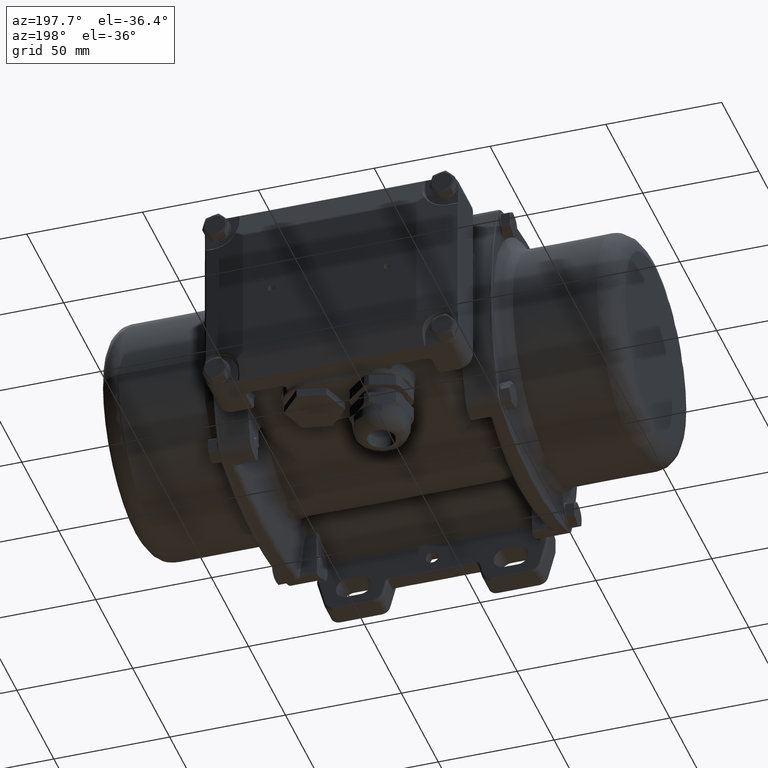
[diagram: clean part render]
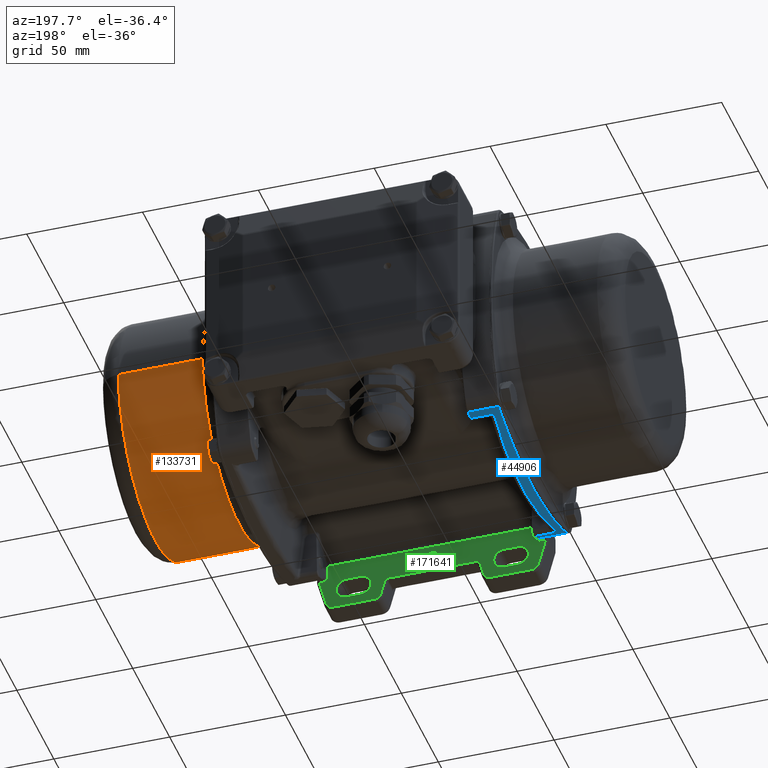
[diagram: same view with three faces highlighted in distinct colors, each labeled with its STEP entity id]
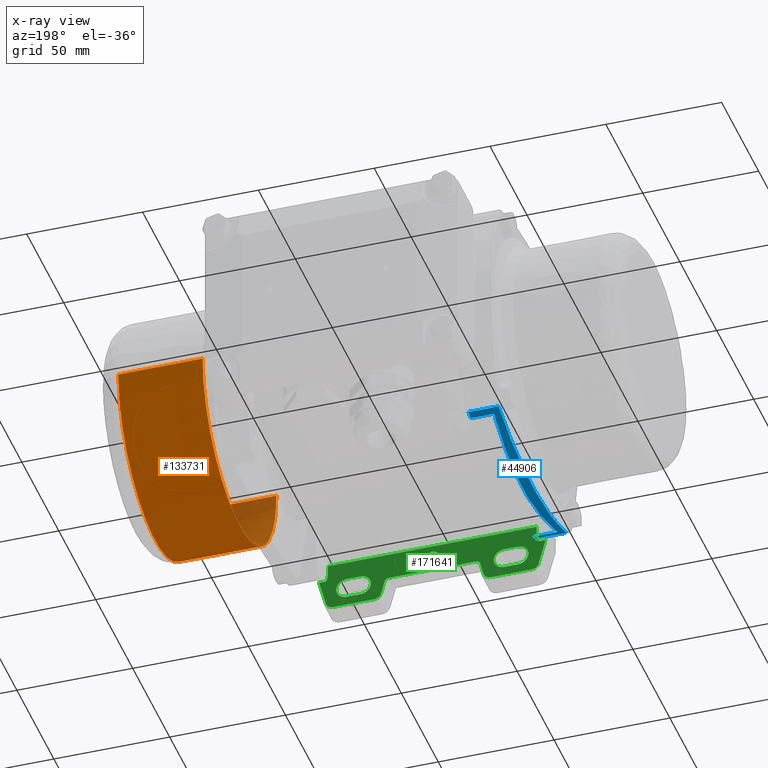
[diagram: x-ray of the same camera — body ghosted, the three highlighted faces saturated]
A machine part, auxiliary view with three faces highlighted in distinct colors.
The next image is the same camera in x-ray (body ghosted, the three faces saturated) — at least one of them is partly hidden behind the body in this view.
Their STEP definitions:

[orange] entity #133731 — the highlighted face is a freeform B-spline surface patch.
#1134 = CARTESIAN_POINT ( 'NONE',  ( 137.5000130619930600, -97.75750152973195400, -9.798565397356906500 ) ) ;
#1894 = CARTESIAN_POINT ( 'NONE',  ( 173.8001130619904900, -98.40000607826182500, 3.260702701135895800 ) ) ;
#5063 = CARTESIAN_POINT ( 'NONE',  ( 173.8000130619930700, -97.51991393231438100, -9.750513505926370800 ) ) ;
#8636 = CARTESIAN_POINT ( 'NONE',  ( 137.4999130619955300, -38.70225569164893600, -49.25664868513214100 ) ) ;
#9373 = CARTESIAN_POINT ( 'NONE',  ( 137.4999130619955000, -12.98792077106269400, -35.51206993632821700 ) ) ;
#10088 = CARTESIAN_POINT ( 'NONE',  ( 161.7000463953254700, -58.29800035907141600, -49.25646706687449200 ) ) ;
#10790 = CARTESIAN_POINT ( 'NONE',  ( 161.7000463953255000, -85.04917808107627800, -34.24723621368516300 ) ) ;
#11512 = CARTESIAN_POINT ( 'NONE',  ( 149.5999797286604600, -20.59833929758631800, -41.75777808059534400 ) ) ;
#12238 = CARTESIAN_POINT ( 'NONE',  ( 173.8001130619904600, -38.70226850059680100, 49.25666254157798800 ) ) ;
#12954 = CARTESIAN_POINT ( 'NONE',  ( 149.5999797286604900, -20.59835015649088400, 41.75779664487468100 ) ) ;
#13673 = CARTESIAN_POINT ( 'NONE',  ( 161.7000463953254200, -6.742220985608151200, 27.90167317628941400 ) ) ;
#13944 = ORIENTED_EDGE ( 'NONE', *, *, #133730, .F. ) ;
#14412 = CARTESIAN_POINT ( 'NONE',  ( 149.5999797286605100, -48.49994779648862000, 50.22172388916254700 ) ) ;
#15146 = CARTESIAN_POINT ( 'NONE',  ( 137.4999130619955000, -12.98793000580220700, 35.51209047965922100 ) ) ;
#17988 = CARTESIAN_POINT ( 'NONE',  ( 137.5000130619930000, -29.28099574932228700, -46.39876424518563900 ) ) ;
#18694 = CARTESIAN_POINT ( 'NONE',  ( 137.5000130619930300, -67.71808628543421100, -46.39953175671136900 ) ) ;
#20164 = CARTESIAN_POINT ( 'NONE',  ( 137.5000130619930600, -95.61092292254228700, -16.86883394151882200 ) ) ;
#21888 = CARTESIAN_POINT ( 'NONE',  ( 173.8000130619929600, 1.399994345702495300, 1.214241889178202100E-005 ) ) ;
#22811 = VERTEX_POINT ( 'NONE', #191274 ) ;
#23329 = CARTESIAN_POINT ( 'NONE',  ( 173.8000130619930700, -98.23954719438607700, -4.899241407021983200 ) ) ;
#24026 = CARTESIAN_POINT ( 'NONE',  ( 173.8000130619930100, -48.49993473636309500, -50.22171261757240000 ) ) ;
#24769 = CARTESIAN_POINT ( 'NONE',  ( 173.8000130619930400, -58.29800035988451200, -49.25646692872127400 ) ) ;
#25513 = CARTESIAN_POINT ( 'NONE',  ( 173.8001130619904600, -67.71810198381092500, -46.39950577351923000 ) ) ;
#26230 = CARTESIAN_POINT ( 'NONE',  ( 173.8001130619904000, -20.59833929758629600, -41.75777808059534400 ) ) ;
#26935 = CARTESIAN_POINT ( 'NONE',  ( 173.8001130619904900, -85.04917808107626300, -34.24723621368516300 ) ) ;
#27665 = CARTESIAN_POINT ( 'NONE',  ( 149.5999797286605100, -80.20698886072477800, -38.63510880981389300 ) ) ;
#28393 = CARTESIAN_POINT ( 'NONE',  ( 173.8001130619904000, -12.98792077106265800, -35.51206993632822400 ) ) ;
#29117 = CARTESIAN_POINT ( 'NONE',  ( 149.5999797286605400, -74.95894854989659000, 42.52817422243963100 ) ) ;
#29846 = CARTESIAN_POINT ( 'NONE',  ( 149.5999797286604900, -38.70226850059682300, 49.25666254157798800 ) ) ;
#30597 = CARTESIAN_POINT ( 'NONE',  ( 161.7000463953254700, -58.29801316797144000, 49.25647582754456300 ) ) ;
#31312 = CARTESIAN_POINT ( 'NONE',  ( 149.5999797286604600, 0.7566654714444496200, -9.797748747158381700 ) ) ;
#32045 = CARTESIAN_POINT ( 'NONE',  ( 161.7000463953254200, -12.98793000580218800, 35.51209047965921400 ) ) ;
#33520 = CARTESIAN_POINT ( 'NONE',  ( 137.4999130619955800, -97.91626642521966100, 8.171362550093771700 ) ) ;
#34184 = CARTESIAN_POINT ( 'NONE',  ( 137.5000130619930300, -74.95898371180889800, -42.52809329135374100 ) ) ;
#34913 = CARTESIAN_POINT ( 'NONE',  ( 137.5000130619930600, -88.72513791767174500, -29.83341734688175600 ) ) ;
#35651 = CARTESIAN_POINT ( 'NONE',  ( 137.5000130619930600, -98.40000565429701900, -8.338274834972561200E-007 ) ) ;
#38831 = CARTESIAN_POINT ( 'NONE',  ( 149.5999797286605400, -98.40000565429699000, -8.338274841036208500E-007 ) ) ;
#39522 = CARTESIAN_POINT ( 'NONE',  ( 173.8000130619930100, -38.70225569170733600, -49.25664867521319200 ) ) ;
#40214 = CARTESIAN_POINT ( 'NONE',  ( 173.8000130619929800, -2.101234684011604500, -19.21898750074266000 ) ) ;
#41678 = CARTESIAN_POINT ( 'NONE',  ( 173.8000130619930100, -20.59833929759048500, -41.75777807988320200 ) ) ;
#42374 = CARTESIAN_POINT ( 'NONE',  ( 149.5999797286604600, -6.742213729919948100, -27.90165100879322300 ) ) ;
#43104 = CARTESIAN_POINT ( 'NONE',  ( 149.5999797286605100, -48.49993473658103200, -50.22171258055437400 ) ) ;
#43817 = CARTESIAN_POINT ( 'NONE',  ( 149.5999797286605400, -94.12707860382025200, -20.66132950142041500 ) ) ;
#44532 = CARTESIAN_POINT ( 'NONE',  ( 161.7000463953255000, -74.95893749065732000, -42.52816979436303100 ) ) ;
#45260 = CARTESIAN_POINT ( 'NONE',  ( 173.8001130619904000, -6.742213729919926700, -27.90165100879322700 ) ) ;
#46002 = CARTESIAN_POINT ( 'NONE',  ( 149.5999797286604600, 1.721659419796212100, 1.218424261408775300E-005 ) ) ;
#46177 = B_SPLINE_CURVE_WITH_KNOTS ( 'NONE', 3,
 ( #56045, #139743, #139024, #108125 ),
 .UNSPECIFIED., .F., .F.,
 ( 4, 4 ),
 ( 9.999999739385148600E-005, 36.30009999999742800 ),
 .UNSPECIFIED. ) ;
#46717 = CARTESIAN_POINT ( 'NONE',  ( 161.7000463953254200, 0.7566629235855604200, 9.797772864701352400 ) ) ;
#47450 = CARTESIAN_POINT ( 'NONE',  ( 173.8001130619904600, -67.71811404977202600, 46.39951208453888400 ) ) ;
#48167 = CARTESIAN_POINT ( 'NONE',  ( 149.5999797286605400, -85.04918698689967000, 34.24723801784526200 ) ) ;
#50335 = CARTESIAN_POINT ( 'NONE',  ( 137.4999130619955800, -94.12708397669597100, 20.66132894491818900 ) ) ;
#51054 = CARTESIAN_POINT ( 'NONE',  ( 161.7000463953255000, -97.91626642521963200, 8.171362550093769900 ) ) ;
#53187 = CARTESIAN_POINT ( 'NONE',  ( 137.5000130619929700, -20.59833931926928600, -41.75777804470696000 ) ) ;
#55644 = CARTESIAN_POINT ( 'NONE',  ( 173.8001130619904900, -98.40000523033212700, -3.260704368790851200 ) ) ;
#56045 = CARTESIAN_POINT ( 'NONE',  ( 173.8000130619930400, -98.40000565429697600, -8.338274853163561400E-007 ) ) ;
#56360 = CARTESIAN_POINT ( 'NONE',  ( 173.8000130619930700, -96.32793636024524600, -14.50875123586112600 ) ) ;
#57074 = CARTESIAN_POINT ( 'NONE',  ( 161.7000463953255000, -98.40000565429699000, -8.338274847099914100E-007 ) ) ;
#58518 = CARTESIAN_POINT ( 'NONE',  ( 173.8001130619904900, -96.32793973720279700, -14.50817744715243100 ) ) ;
#59263 = CARTESIAN_POINT ( 'NONE',  ( 137.4999130619955300, -29.28099583024396700, -46.39876411124813400 ) ) ;
#59981 = CARTESIAN_POINT ( 'NONE',  ( 173.8001130619904900, -90.25836619640159600, -27.90199673357712800 ) ) ;
#60685 = CARTESIAN_POINT ( 'NONE',  ( 173.8001130619904900, -94.12707860382022300, -20.66132950142041500 ) ) ;
#61407 = CARTESIAN_POINT ( 'NONE',  ( 173.8001130619904300, -29.28099583024393500, -46.39876411124813400 ) ) ;
#62152 = CARTESIAN_POINT ( 'NONE',  ( 137.4999130619955000, -6.742220985608171600, 27.90167317628941700 ) ) ;
#62875 = CARTESIAN_POINT ( 'NONE',  ( 149.5999797286604600, 0.7566629235855535400, 9.797772864701354200 ) ) ;
#63585 = CARTESIAN_POINT ( 'NONE',  ( 137.4999130619955600, -74.95894854989660400, 42.52817422243963800 ) ) ;
#64329 = CARTESIAN_POINT ( 'NONE',  ( 173.8001130619904300, -20.59835015649086300, 41.75779664487468100 ) ) ;
#65066 = CARTESIAN_POINT ( 'NONE',  ( 137.4999130619955800, -90.25837345217691200, 27.90199718311400900 ) ) ;
#67970 = CARTESIAN_POINT ( 'NONE',  ( 173.8001130619904900, -97.91626642521963200, 8.171362550093769900 ) ) ;
#68641 = CARTESIAN_POINT ( 'NONE',  ( 137.5000130619929700, -6.742213731477292500, -27.90165100621744200 ) ) ;
#68685 = CARTESIAN_POINT ( 'NONE',  ( 161.7000463953255000, -98.40000607826185300, 3.260702701135896700 ) ) ;
#70815 = CARTESIAN_POINT ( 'NONE',  ( 137.5000130619929700, 1.399994345702459500, 1.214241889405884100E-005 ) ) ;
#72581 = CARTESIAN_POINT ( 'NONE',  ( 173.8001130619904900, -97.91626430029731400, -8.171364091954458800 ) ) ;
#75481 = CARTESIAN_POINT ( 'NONE',  ( 137.4999130619955800, -94.12707860382025200, -20.66132950142041500 ) ) ;
#76176 = CARTESIAN_POINT ( 'NONE',  ( 173.8001130619904000, -2.101234684011660500, -19.21898750072899300 ) ) ;
#76425 = CARTESIAN_POINT ( 'NONE',  ( 173.8000130619929600, 1.399994345702495300, 1.214241889178202100E-005 ) ) ;
#76889 = CARTESIAN_POINT ( 'NONE',  ( 161.7000463953254700, -67.71810198381093900, -46.39950577351923000 ) ) ;
#77621 = CARTESIAN_POINT ( 'NONE',  ( 149.5999797286605100, -74.95893749065733400, -42.52816979436303100 ) ) ;
#78339 = CARTESIAN_POINT ( 'NONE',  ( 173.8001130619904300, -38.70225569164890800, -49.25664868513214100 ) ) ;
#79034 = CARTESIAN_POINT ( 'NONE',  ( 173.8001130619904600, -58.29801316797143300, 49.25647582754456300 ) ) ;
#79751 = CARTESIAN_POINT ( 'NONE',  ( 149.5999797286604600, -12.98793000580219300, 35.51209047965922100 ) ) ;
#80491 = CARTESIAN_POINT ( 'NONE',  ( 149.5999797286605100, -58.29801316797145500, 49.25647582754456300 ) ) ;
#81206 = CARTESIAN_POINT ( 'NONE',  ( 173.8001130619904600, -90.25837345217688300, 27.90199718311400900 ) ) ;
#81921 = CARTESIAN_POINT ( 'NONE',  ( 137.4999130619955600, -80.20699890759273400, 38.63511187316100900 ) ) ;
#82656 = CARTESIAN_POINT ( 'NONE',  ( 137.4999130619955800, -96.32794350998194900, 14.50817631832741300 ) ) ;
#84089 = CARTESIAN_POINT ( 'NONE',  ( 149.5999797286605400, -96.32794350998194900, 14.50817631832741300 ) ) ;
#85514 = CARTESIAN_POINT ( 'NONE',  ( 137.5000130619930600, -91.79229777796554400, -24.98912359757936800 ) ) ;
#85561 = CARTESIAN_POINT ( 'NONE',  ( 137.4999130619955800, -98.40000565429701900, -8.338274834972511400E-007 ) ) ;
#86229 = CARTESIAN_POINT ( 'NONE',  ( 137.5000130619930600, -98.40000523033215500, -3.260704368790849000 ) ) ;
#87339 = CARTESIAN_POINT ( 'NONE',  ( 137.5000130619930600, -98.40000565429701900, -8.338274834972561200E-007 ) ) ;
#89412 = CARTESIAN_POINT ( 'NONE',  ( 161.7000463953255000, -97.91626430029731400, -8.171364091954458800 ) ) ;
#90810 = VERTEX_POINT ( 'NONE', #91538 ) ;
#91538 = CARTESIAN_POINT ( 'NONE',  ( 173.8000130619929600, 1.399994345702495300, 1.214241889178202100E-005 ) ) ;
#91583 = CARTESIAN_POINT ( 'NONE',  ( 137.4999130619955800, -98.40000523033215500, -3.260704368790849000 ) ) ;
#92303 = CARTESIAN_POINT ( 'NONE',  ( 173.8001130619904900, -74.95893749065732000, -42.52816979436303100 ) ) ;
#92564 = CARTESIAN_POINT ( 'NONE',  ( 161.7000130619929900, 1.399994345702481700, 1.214241887858071800E-005 ) ) ;
#93040 = CARTESIAN_POINT ( 'NONE',  ( 137.4999130619955000, -2.101234684011695100, -19.21898750072899300 ) ) ;
#93769 = CARTESIAN_POINT ( 'NONE',  ( 161.7000463953254400, -38.70225569164891500, -49.25664868513214100 ) ) ;
#94473 = CARTESIAN_POINT ( 'NONE',  ( 149.5999797286605100, -58.29800035907142300, -49.25646706687449200 ) ) ;
#94982 = VERTEX_POINT ( 'NONE', #87339 ) ;
#95189 = CARTESIAN_POINT ( 'NONE',  ( 149.5999797286604900, -29.28099583024395300, -46.39876411124813400 ) ) ;
#95916 = CARTESIAN_POINT ( 'NONE',  ( 149.5999797286604600, -6.742220985608157400, 27.90167317628941700 ) ) ;
#96639 = CARTESIAN_POINT ( 'NONE',  ( 137.4999130619955000, 1.721659419796198100, 1.218424261469412100E-005 ) ) ;
#97350 = CARTESIAN_POINT ( 'NONE',  ( 173.8001130619904000, -12.98793000580217300, 35.51209047965921400 ) ) ;
#98091 = CARTESIAN_POINT ( 'NONE',  ( 161.7000463953254400, -20.59835015649087400, 41.75779664487468100 ) ) ;
#98840 = CARTESIAN_POINT ( 'NONE',  ( 173.8001130619905200, -94.12708397669592800, 20.66132894491818900 ) ) ;
#100268 = CARTESIAN_POINT ( 'NONE',  ( 149.5999797286605400, -94.12708397669594300, 20.66132894491818900 ) ) ;
#101687 = CARTESIAN_POINT ( 'NONE',  ( 137.5000130619929700, -2.101234683592440300, -19.21898750141592100 ) ) ;
#102378 = B_SPLINE_CURVE_WITH_KNOTS ( 'NONE', 3,
 ( #70815, #118565, #185361, #101687, #68641, #188258, #53187, #17988, #117855, #134719, #119307, #18694, #34184, #136175, #135449, #34913, #85514, #168439, #20164, #1134, #86229, #35651 ),
 .UNSPECIFIED., .F., .F.,
 ( 4, 1, 1, 1, 1, 1, 1, 1, 1, 1, 1, 1, 1, 1, 1, 1, 1, 1, 1, 4 ),
 ( 0.5000000000000000000, 0.5312441126321056900, 0.5624882252642111600, 0.5937323378963168500, 0.6249764505284224300, 0.6562205631605280100, 0.6874646757926337100, 0.7187087884247391800, 0.7499529010568448700, 0.7811970136889505600, 0.8124411263210560300, 0.8436852389531617200, 0.8593261354139920500, 0.8749670318748221700, 0.8984165989924881600, 0.9218661661101539300, 0.9296889704229713800, 0.9375117747357887300, 0.9687558873678944200, 1.000000000000000000 ),
 .UNSPECIFIED. ) ;
#106304 = CARTESIAN_POINT ( 'NONE',  ( 173.8000130619929800, 0.7566654714444496200, -9.797748747154928500 ) ) ;
#107015 = CARTESIAN_POINT ( 'NONE',  ( 173.8001130619904900, -98.40000565429697600, -8.338274853163611200E-007 ) ) ;
#107255 = CARTESIAN_POINT ( 'NONE',  ( 137.5000130619929700, 1.399994345702459500, 1.214241889405884100E-005 ) ) ;
#107718 = CARTESIAN_POINT ( 'NONE',  ( 173.8000130619930700, -94.12708055271336600, -20.66099835930117100 ) ) ;
#108125 = CARTESIAN_POINT ( 'NONE',  ( 137.5000130619930600, -98.40000565429701900, -8.338274834972561200E-007 ) ) ;
#108440 = CARTESIAN_POINT ( 'NONE',  ( 173.8000130619930700, -85.04917816503973400, -34.24722194720976600 ) ) ;
#109198 = CARTESIAN_POINT ( 'NONE',  ( 137.4999130619955600, -58.29800035907143800, -49.25646706687449200 ) ) ;
#109910 = CARTESIAN_POINT ( 'NONE',  ( 173.8001130619904000, 0.7566654714444703800, -9.797748747158383500 ) ) ;
#110626 = CARTESIAN_POINT ( 'NONE',  ( 137.4999130619955800, -85.04917808107629200, -34.24723621368516300 ) ) ;
#111080 = B_SPLINE_CURVE_WITH_KNOTS ( 'NONE', 3,
 ( #76425, #92564, #158634, #107255 ),
 .UNSPECIFIED., .F., .F.,
 ( 4, 4 ),
 ( 9.999999742160706100E-005, 36.30009999999742800 ),
 .UNSPECIFIED. ) ;
#111351 = CARTESIAN_POINT ( 'NONE',  ( 149.5999797286605100, -67.71810198381095300, -46.39950577351923000 ) ) ;
#112097 = CARTESIAN_POINT ( 'NONE',  ( 137.4999130619955800, -97.91626430029734300, -8.171364091954457000 ) ) ;
#112795 = CARTESIAN_POINT ( 'NONE',  ( 137.4999130619955000, 0.7566654714444356300, -9.797748747158381700 ) ) ;
#113500 = CARTESIAN_POINT ( 'NONE',  ( 137.4999130619955000, -20.59835015649089800, 41.75779664487468100 ) ) ;
#114261 = CARTESIAN_POINT ( 'NONE',  ( 149.5999797286604900, -29.28100789601349200, 46.39878041764572500 ) ) ;
#114979 = CARTESIAN_POINT ( 'NONE',  ( 161.7000463953254200, -2.101239681816691200, 19.21901087508905100 ) ) ;
#115696 = CARTESIAN_POINT ( 'NONE',  ( 137.4999130619955800, -85.04918698689969900, 34.24723801784526200 ) ) ;
#117855 = CARTESIAN_POINT ( 'NONE',  ( 137.5000130619930000, -38.70225599365258500, -49.25664818527045700 ) ) ;
#118565 = CARTESIAN_POINT ( 'NONE',  ( 137.5000130619929700, 1.399994770345607900, -3.265908126167143900 ) ) ;
#119307 = CARTESIAN_POINT ( 'NONE',  ( 137.5000130619930300, -58.29800456543882300, -49.25646010469915100 ) ) ;
#119348 = CARTESIAN_POINT ( 'NONE',  ( 149.5999797286605400, -97.91626642521964600, 8.171362550093771700 ) ) ;
#122523 = CARTESIAN_POINT ( 'NONE',  ( 173.8000130619930100, 1.399994770345643900, -3.265908126223259900 ) ) ;
#123933 = CARTESIAN_POINT ( 'NONE',  ( 173.8000130619930700, -98.40000544205889800, -1.632318799786249400 ) ) ;
#126075 = CARTESIAN_POINT ( 'NONE',  ( 161.7000463953255000, -94.12707860382023700, -20.66132950142041500 ) ) ;
#126794 = CARTESIAN_POINT ( 'NONE',  ( 161.7000463953254200, 0.7566654714444565100, -9.797748747158383500 ) ) ;
#127533 = CARTESIAN_POINT ( 'NONE',  ( 149.5999797286605400, -97.91626430029732800, -8.171364091954457000 ) ) ;
#128243 = CARTESIAN_POINT ( 'NONE',  ( 173.8001130619904300, -58.29800035907140200, -49.25646706687449200 ) ) ;
#128951 = CARTESIAN_POINT ( 'NONE',  ( 161.7000463953254700, -48.49993473658101800, -50.22171258055437400 ) ) ;
#129675 = CARTESIAN_POINT ( 'NONE',  ( 161.7000463953255000, -74.95894854989657600, 42.52817422243963100 ) ) ;
#129791 = EDGE_LOOP ( 'NONE', ( #203587, #13944, #182646, #183345 ) ) ;
#130414 = CARTESIAN_POINT ( 'NONE',  ( 161.7000463953254200, -29.28100789601348100, 46.39878041764572500 ) ) ;
#131134 = CARTESIAN_POINT ( 'NONE',  ( 137.4999130619955300, -48.49994779648863400, 50.22172388916254700 ) ) ;
#131865 = CARTESIAN_POINT ( 'NONE',  ( 161.7000463953254700, -67.71811404977204100, 46.39951208453888400 ) ) ;
#132610 = CARTESIAN_POINT ( 'NONE',  ( 137.4999130619955300, -29.28100789601350600, 46.39878041764572500 ) ) ;
#133730 = EDGE_CURVE ( 'NONE', #160410, #90810, #182445, .T. ) ;
#133731 = ADVANCED_FACE ( 'NONE', ( #183950 ), #200497, .F. ) ;
#134719 = CARTESIAN_POINT ( 'NONE',  ( 137.5000130619930000, -48.49993360948826600, -50.22171444606360800 ) ) ;
#135449 = CARTESIAN_POINT ( 'NONE',  ( 137.5000130619930600, -84.44591588211506000, -34.79362026476940200 ) ) ;
#135588 = EDGE_CURVE ( 'NONE', #90810, #22811, #111080, .T. ) ;
#136175 = CARTESIAN_POINT ( 'NONE',  ( 137.5000130619930300, -80.20690869731549800, -38.63524149240271300 ) ) ;
#139024 = CARTESIAN_POINT ( 'NONE',  ( 149.6000130619930500, -98.40000565429697600, -8.338274841036224400E-007 ) ) ;
#139743 = CARTESIAN_POINT ( 'NONE',  ( 161.7000130619930500, -98.40000565429696200, -8.338274847099895000E-007 ) ) ;
#140061 = CARTESIAN_POINT ( 'NONE',  ( 173.8000130619930700, -67.71810198077646700, -46.39950628911405800 ) ) ;
#141507 = CARTESIAN_POINT ( 'NONE',  ( 173.8000130619930700, -74.95893749959176900, -42.52816827628333800 ) ) ;
#142228 = CARTESIAN_POINT ( 'NONE',  ( 173.8000130619930100, -29.28099583022826700, -46.39876411390588400 ) ) ;
#142964 = CARTESIAN_POINT ( 'NONE',  ( 161.7000463953254200, -6.742213729919940900, -27.90165100879322700 ) ) ;
#143699 = CARTESIAN_POINT ( 'NONE',  ( 137.4999130619955000, -20.59833929758633200, -41.75777808059534400 ) ) ;
#144406 = CARTESIAN_POINT ( 'NONE',  ( 149.5999797286605400, -85.04917808107629200, -34.24723621368516300 ) ) ;
#145124 = CARTESIAN_POINT ( 'NONE',  ( 161.7000463953255000, -90.25836619640161000, -27.90199673357712800 ) ) ;
#145853 = CARTESIAN_POINT ( 'NONE',  ( 149.5999797286604600, -12.98792077106267900, -35.51206993632821700 ) ) ;
#146584 = CARTESIAN_POINT ( 'NONE',  ( 161.7000463953255000, -85.04918698689967000, 34.24723801784526200 ) ) ;
#147034 = CARTESIAN_POINT ( 'NONE',  ( 173.8000130619930400, -98.40000565429697600, -8.338274853163561400E-007 ) ) ;
#147287 = CARTESIAN_POINT ( 'NONE',  ( 149.5999797286605100, -67.71811404977204100, 46.39951208453888400 ) ) ;
#148026 = CARTESIAN_POINT ( 'NONE',  ( 173.8001130619904000, -6.742220985608137000, 27.90167317628941400 ) ) ;
#148775 = CARTESIAN_POINT ( 'NONE',  ( 161.7000463953254700, -80.20699890759272000, 38.63511187316100100 ) ) ;
#149492 = CARTESIAN_POINT ( 'NONE',  ( 173.8001130619904600, -48.49994779648859800, 50.22172388916254700 ) ) ;
#150928 = CARTESIAN_POINT ( 'NONE',  ( 173.8001130619904900, -98.40000565429697600, -8.338274853163611200E-007 ) ) ;
#152373 = CARTESIAN_POINT ( 'NONE',  ( 173.8001130619904900, -96.32794350998192100, 14.50817631832741100 ) ) ;
#156234 = CARTESIAN_POINT ( 'NONE',  ( 137.4999130619955800, -98.40000565429701900, -8.338274834972511400E-007 ) ) ;
#156964 = CARTESIAN_POINT ( 'NONE',  ( 173.8000130619930100, -12.98792077106153400, -35.51206993651904000 ) ) ;
#158634 = CARTESIAN_POINT ( 'NONE',  ( 149.6000130619929700, 1.399994345702474800, 1.214241887966491000E-005 ) ) ;
#159835 = CARTESIAN_POINT ( 'NONE',  ( 137.4999130619955000, -6.742213729919961400, -27.90165100879322300 ) ) ;
#160410 = VERTEX_POINT ( 'NONE', #147034 ) ;
#160548 = CARTESIAN_POINT ( 'NONE',  ( 161.7000463953254200, -12.98792077106267200, -35.51206993632822400 ) ) ;
#161275 = CARTESIAN_POINT ( 'NONE',  ( 161.7000463953255000, -96.32793973720281100, -14.50817744715242900 ) ) ;
#161995 = CARTESIAN_POINT ( 'NONE',  ( 137.4999130619955600, -67.71810198381096800, -46.39950577351923000 ) ) ;
#162713 = CARTESIAN_POINT ( 'NONE',  ( 161.7000463953254700, -38.70226850059680900, 49.25666254157798800 ) ) ;
#163432 = CARTESIAN_POINT ( 'NONE',  ( 161.7000463953255000, -90.25837345217689700, 27.90199718311400900 ) ) ;
#164170 = CARTESIAN_POINT ( 'NONE',  ( 137.4999130619955600, -67.71811404977206900, 46.39951208453888400 ) ) ;
#164905 = CARTESIAN_POINT ( 'NONE',  ( 149.5999797286605400, -80.20699890759272000, 38.63511187316100900 ) ) ;
#165613 = CARTESIAN_POINT ( 'NONE',  ( 149.5999797286605400, -90.25837345217691200, 27.90199718311400900 ) ) ;
#167767 = CARTESIAN_POINT ( 'NONE',  ( 137.4999130619955800, -98.40000607826186800, 3.260702701135898000 ) ) ;
#168439 = CARTESIAN_POINT ( 'NONE',  ( 137.5000130619930600, -93.62716444650664000, -21.34353026462702000 ) ) ;
#172389 = CARTESIAN_POINT ( 'NONE',  ( 173.8000130619930100, -6.742213729920225200, -27.90165100874208500 ) ) ;
#173103 = CARTESIAN_POINT ( 'NONE',  ( 173.8000130619930700, -80.20698884522933300, -38.63511144268735400 ) ) ;
#175961 = CARTESIAN_POINT ( 'NONE',  ( 137.4999130619955800, -96.32793973720282600, -14.50817744715242900 ) ) ;
#176686 = CARTESIAN_POINT ( 'NONE',  ( 161.7000463953254200, -2.101234684011674200, -19.21898750072899300 ) ) ;
#177429 = CARTESIAN_POINT ( 'NONE',  ( 149.5999797286604900, -38.70225569164892900, -49.25664868513214100 ) ) ;
#178141 = CARTESIAN_POINT ( 'NONE',  ( 137.4999130619955600, -80.20698886072480600, -38.63510880981389300 ) ) ;
#178848 = CARTESIAN_POINT ( 'NONE',  ( 161.7000463953254200, -20.59833929758630700, -41.75777808059534400 ) ) ;
#179577 = CARTESIAN_POINT ( 'NONE',  ( 173.8001130619904000, -29.28100789601347000, 46.39878041764572500 ) ) ;
#180317 = CARTESIAN_POINT ( 'NONE',  ( 173.8001130619904000, -2.101239681816677400, 19.21901087508905100 ) ) ;
#181036 = CARTESIAN_POINT ( 'NONE',  ( 173.8001130619904900, -74.95894854989656200, 42.52817422243963100 ) ) ;
#181765 = CARTESIAN_POINT ( 'NONE',  ( 173.8001130619904900, -85.04918698689965600, 34.24723801784526200 ) ) ;
#182445 = B_SPLINE_CURVE_WITH_KNOTS ( 'NONE', 3,
 ( #192130, #123933, #23329, #5063, #56360, #107718, #209098, #108440, #173103, #141507, #140061, #24769, #24026, #39522, #142228, #41678, #156964, #172389, #40214, #106304, #122523, #21888 ),
 .UNSPECIFIED., .F., .F.,
 ( 4, 1, 1, 1, 1, 1, 1, 1, 1, 1, 1, 1, 1, 1, 1, 1, 1, 1, 1, 4 ),
 ( 0.0000000000000000000, 0.01564030704077106300, 0.03128061408154212500, 0.04692092112231319200, 0.06256122816308425100, 0.09380416337503608100, 0.1250470985869878700, 0.1406874056277589400, 0.1563277126685300200, 0.1875706478804818600, 0.2188135830924336200, 0.2500565183043854100, 0.2812994535163372800, 0.3125423887282890400, 0.3437853239402408100, 0.3750282591521926800, 0.4062711943641444900, 0.4375141295760963100, 0.4687570647880480700, 0.5000000000000000000 ),
 .UNSPECIFIED. ) ;
#182506 = CARTESIAN_POINT ( 'NONE',  ( 137.4999130619955000, 0.7566629235855395500, 9.797772864701354200 ) ) ;
#182646 = ORIENTED_EDGE ( 'NONE', *, *, #190567, .T. ) ;
#183243 = CARTESIAN_POINT ( 'NONE',  ( 161.7000463953255000, -96.32794350998193500, 14.50817631832741300 ) ) ;
#183345 = ORIENTED_EDGE ( 'NONE', *, *, #200284, .F. ) ;
#183950 = FACE_OUTER_BOUND ( 'NONE', #129791, .T. ) ;
#184673 = CARTESIAN_POINT ( 'NONE',  ( 149.5999797286605400, -98.40000607826185300, 3.260702701135897100 ) ) ;
#185361 = CARTESIAN_POINT ( 'NONE',  ( 137.5000130619929700, 0.7566654713246495600, -9.797748746986625800 ) ) ;
#186124 = CARTESIAN_POINT ( 'NONE',  ( 149.5999797286605400, -98.40000565429699000, -8.338274841036208500E-007 ) ) ;
#188258 = CARTESIAN_POINT ( 'NONE',  ( 137.5000130619929700, -12.98792076525261800, -35.51206994594426900 ) ) ;
#189980 = CARTESIAN_POINT ( 'NONE',  ( 161.7000463953255000, -98.40000523033212700, -3.260704368790850300 ) ) ;
#190567 = EDGE_CURVE ( 'NONE', #160410, #94982, #46177, .T. ) ;
#191274 = CARTESIAN_POINT ( 'NONE',  ( 137.5000130619929700, 1.399994345702459500, 1.214241889405884100E-005 ) ) ;
#192130 = CARTESIAN_POINT ( 'NONE',  ( 173.8000130619930400, -98.40000565429697600, -8.338274853163561400E-007 ) ) ;
#192857 = CARTESIAN_POINT ( 'NONE',  ( 137.4999130619955800, -90.25836619640162400, -27.90199673357712800 ) ) ;
#193604 = CARTESIAN_POINT ( 'NONE',  ( 149.5999797286604600, -2.101234684011680900, -19.21898750072899300 ) ) ;
#194306 = CARTESIAN_POINT ( 'NONE',  ( 161.7000463953254700, -80.20698886072477800, -38.63510880981390000 ) ) ;
#195036 = CARTESIAN_POINT ( 'NONE',  ( 173.8001130619904600, -48.49993473658101100, -50.22171258055437400 ) ) ;
#195760 = CARTESIAN_POINT ( 'NONE',  ( 161.7000463953254400, -29.28099583024394200, -46.39876411124813400 ) ) ;
#196490 = CARTESIAN_POINT ( 'NONE',  ( 161.7000463953254200, 1.721659419796218900, 1.218424261348138200E-005 ) ) ;
#197200 = CARTESIAN_POINT ( 'NONE',  ( 137.4999130619955000, -2.101239681816712100, 19.21901087508905100 ) ) ;
#197921 = CARTESIAN_POINT ( 'NONE',  ( 173.8001130619904600, -80.20699890759269100, 38.63511187316100100 ) ) ;
#198665 = CARTESIAN_POINT ( 'NONE',  ( 173.8001130619904000, 0.7566629235855743000, 9.797772864701352400 ) ) ;
#199382 = CARTESIAN_POINT ( 'NONE',  ( 149.5999797286604600, -2.101239681816698300, 19.21901087508905100 ) ) ;
#200284 = EDGE_CURVE ( 'NONE', #22811, #94982, #102378, .T. ) ;
#200497 = B_SPLINE_SURFACE_WITH_KNOTS ( 'NONE', 3, 3, ( 
 ( #107015, #57074, #38831, #156234 ),
 ( #55644, #189980, #208343, #91583 ),
 ( #72581, #89412, #127533, #112097 ),
 ( #58518, #161275, #209820, #175961 ),
 ( #60685, #126075, #43817, #75481 ),
 ( #59981, #145124, #210526, #192857 ),
 ( #26935, #10790, #144406, #110626 ),
 ( #211256, #194306, #27665, #178141 ),
 ( #92303, #44532, #77621, #212692 ),
 ( #25513, #76889, #111351, #161995 ),
 ( #128243, #10088, #94473, #109198 ),
 ( #195036, #128951, #43104, #211986 ),
 ( #78339, #93769, #177429, #8636 ),
 ( #61407, #195760, #95189, #59263 ),
 ( #26230, #178848, #11512, #143699 ),
 ( #28393, #160548, #145853, #9373 ),
 ( #45260, #142964, #42374, #159835 ),
 ( #76176, #176686, #193604, #93040 ),
 ( #109910, #126794, #31312, #112795 ),
 ( #214139, #196490, #46002, #96639 ),
 ( #198665, #46717, #62875, #182506 ),
 ( #180317, #114979, #199382, #197200 ),
 ( #148026, #13673, #95916, #62152 ),
 ( #97350, #32045, #79751, #15146 ),
 ( #64329, #98091, #12954, #113500 ),
 ( #179577, #130414, #114261, #132610 ),
 ( #12238, #162713, #29846, #214862 ),
 ( #149492, #213409, #14412, #131134 ),
 ( #79034, #30597, #80491, #215589 ),
 ( #47450, #131865, #147287, #164170 ),
 ( #181036, #129675, #29117, #63585 ),
 ( #197921, #148775, #164905, #81921 ),
 ( #181765, #146584, #48167, #115696 ),
 ( #81206, #163432, #165613, #65066 ),
 ( #98840, #216322, #100268, #50335 ),
 ( #152373, #183243, #84089, #82656 ),
 ( #67970, #51054, #119348, #33520 ),
 ( #1894, #68685, #184673, #167767 ),
 ( #150928, #202301, #186124, #85561 ) ),
 .UNSPECIFIED., .T., .F., .F.,
 ( 4, 1, 1, 1, 1, 1, 1, 1, 1, 1, 1, 1, 1, 1, 1, 1, 1, 1, 1, 1, 1, 1, 1, 1, 1, 1, 1, 1, 1, 1, 1, 1, 1, 1, 1, 1, 4 ),
 ( 4, 4 ),
 ( 0.0000000000000000000, 9.782110604890178300, 14.67906450276651100, 19.57601840064284500, 29.35812900553302300, 39.14023961042320800, 44.03719350829953800, 48.93414740617586700, 58.71625801106604600, 68.49836861595621000, 78.28047922084640200, 88.06258982573656600, 97.84470043062675900, 107.6268110355169200, 117.4089216404071200, 127.1910322452973100, 136.9731428501874600, 146.7552534550776500, 156.5373640599678400, 166.3194746648580300, 176.1015852697481700, 185.8836958746383600, 195.6658064795285600, 205.4479170844187500, 215.2300276893088800, 225.0121382941990800, 234.7942488990892700, 244.5763595039794600, 254.3584701088696500, 264.1405807137597900, 269.0375346116360900, 273.9344885095124500, 283.7165991144026400, 293.4987097192927800, 298.3956636171690800, 303.2926175150454400, 313.0747281199356300 ),
 ( 0.0000000000000000000, 36.30019999999490200 ),
 .UNSPECIFIED. ) ;
#202301 = CARTESIAN_POINT ( 'NONE',  ( 161.7000463953255000, -98.40000565429699000, -8.338274847099914100E-007 ) ) ;
#203587 = ORIENTED_EDGE ( 'NONE', *, *, #135588, .F. ) ;
#208343 = CARTESIAN_POINT ( 'NONE',  ( 149.5999797286605400, -98.40000523033214100, -3.260704368790849900 ) ) ;
#209098 = CARTESIAN_POINT ( 'NONE',  ( 173.8000130619930700, -90.25836551905503300, -27.90211182350932300 ) ) ;
#209820 = CARTESIAN_POINT ( 'NONE',  ( 149.5999797286605400, -96.32793973720282600, -14.50817744715242900 ) ) ;
#210526 = CARTESIAN_POINT ( 'NONE',  ( 149.5999797286605400, -90.25836619640162400, -27.90199673357712800 ) ) ;
#211256 = CARTESIAN_POINT ( 'NONE',  ( 173.8001130619904600, -80.20698886072476300, -38.63510880981390000 ) ) ;
#211986 = CARTESIAN_POINT ( 'NONE',  ( 137.4999130619955300, -48.49993473658104600, -50.22171258055437400 ) ) ;
#212692 = CARTESIAN_POINT ( 'NONE',  ( 137.4999130619955600, -74.95893749065734800, -42.52816979436302300 ) ) ;
#213409 = CARTESIAN_POINT ( 'NONE',  ( 161.7000463953254700, -48.49994779648860500, 50.22172388916254700 ) ) ;
#214139 = CARTESIAN_POINT ( 'NONE',  ( 173.8001130619904000, 1.721659419796232900, 1.218424261287501300E-005 ) ) ;
#214862 = CARTESIAN_POINT ( 'NONE',  ( 137.4999130619955300, -38.70226850059683700, 49.25666254157798800 ) ) ;
#215589 = CARTESIAN_POINT ( 'NONE',  ( 137.4999130619955600, -58.29801316797146900, 49.25647582754456300 ) ) ;
#216322 = CARTESIAN_POINT ( 'NONE',  ( 161.7000463953255000, -94.12708397669594300, 20.66132894491818900 ) ) ;

[blue] entity #44906 — the highlighted face is a freeform B-spline surface patch.
#416 = ORIENTED_EDGE ( 'NONE', *, *, #152791, .F. ) ;
#1625 = CARTESIAN_POINT ( 'NONE',  ( 14.95662376580261100, -26.58830071286223200, -56.78395914921193100 ) ) ;
#5679 = CARTESIAN_POINT ( 'NONE',  ( 23.99998712874163000, -93.50109683395696400, -50.40079480208901000 ) ) ;
#8421 = ORIENTED_EDGE ( 'NONE', *, *, #129628, .T. ) ;
#10053 = ORIENTED_EDGE ( 'NONE', *, *, #20797, .F. ) ;
#10526 = ORIENTED_EDGE ( 'NONE', *, *, #88160, .F. ) ;
#13205 = CARTESIAN_POINT ( 'NONE',  ( 13.83545083211468100, -91.52568447735390600, -51.11319617069466400 ) ) ;
#17300 = CARTESIAN_POINT ( 'NONE',  ( 19.66698712875769700, -9.726187752037541000, -52.78486643510849800 ) ) ;
#18462 = CARTESIAN_POINT ( 'NONE',  ( 14.21408202894735200, -11.47195566664082600, -53.09514184154251400 ) ) ;
#19682 = CARTESIAN_POINT ( 'NONE',  ( 17.22362993334951000, -5.474309750547245600, -51.11327643574908600 ) ) ;
#20402 = CARTESIAN_POINT ( 'NONE',  ( 13.83545132355379400, -5.474338145785684300, -51.11319615412841000 ) ) ;
#20797 = EDGE_CURVE ( 'NONE', #107442, #175902, #48650, .T. ) ;
#21106 = CARTESIAN_POINT ( 'NONE',  ( 23.99998712874196400, -3.254578796828999600, -50.30586689761242500 ) ) ;
#21904 = FACE_OUTER_BOUND ( 'NONE', #209429, .T. ) ;
#23261 = CARTESIAN_POINT ( 'NONE',  ( 23.99998712874185000, -4.732581505183075500, -50.84916039455658400 ) ) ;
#25898 = CARTESIAN_POINT ( 'NONE',  ( 23.99998712874207400, -91.52568457936138200, -51.11319645861370000 ) ) ;
#27504 = VERTEX_POINT ( 'NONE', #92058 ) ;
#29346 = LINE ( 'NONE', #149269, #202741 ) ;
#30500 = ORIENTED_EDGE ( 'NONE', *, *, #117270, .F. ) ;
#32017 = CARTESIAN_POINT ( 'NONE',  ( 24.00098712878939700, -2.397873378834070000, -49.98067429386929200 ) ) ;
#33496 = CARTESIAN_POINT ( 'NONE',  ( 24.00098712878917700, -24.93220679267416200, -57.06214689052791300 ) ) ;
#33954 = CARTESIAN_POINT ( 'NONE',  ( 14.55880207626929100, -17.62859246617841400, -54.84522371166529800 ) ) ;
#34200 = CARTESIAN_POINT ( 'NONE',  ( 19.66698712875769700, -94.60214923835327700, -49.98067429386932000 ) ) ;
#34929 = CARTESIAN_POINT ( 'NONE',  ( 19.66698712875758300, -24.93220679267416200, -57.06214689052791300 ) ) ;
#38273 = B_SPLINE_CURVE_WITH_KNOTS ( 'NONE', 3,
 ( #184974, #198948, #40977, #55672 ),
 .UNSPECIFIED., .F., .F.,
 ( 4, 4 ),
 ( 0.0000000000000000000, 1.000000000000000000 ),
 .UNSPECIFIED. ) ;
#38767 = CARTESIAN_POINT ( 'NONE',  ( 23.99998712874185000, -5.226889350972596700, -51.02574128676320000 ) ) ;
#40686 = VERTEX_POINT ( 'NONE', #135863 ) ;
#40977 = CARTESIAN_POINT ( 'NONE',  ( 13.94615179315958800, -89.84497331268364900, -51.69815223642147800 ) ) ;
#44906 = ADVANCED_FACE ( 'NONE', ( #21904 ), #197245, .F. ) ;
#48650 = B_SPLINE_CURVE_WITH_KNOTS ( 'NONE', 3,
 ( #151071, #199511, #98980, #99691 ),
 .UNSPECIFIED., .F., .F.,
 ( 4, 4 ),
 ( -3.046445353766469100E-012, 1.000000000000000000 ),
 .UNSPECIFIED. ) ;
#50305 = CARTESIAN_POINT ( 'NONE',  ( 24.00098712878939700, -9.726187752037541000, -52.78486643510849800 ) ) ;
#51420 = CARTESIAN_POINT ( 'NONE',  ( 13.83545132355379400, -5.474338145785684300, -51.11319615412841000 ) ) ;
#54880 = CARTESIAN_POINT ( 'NONE',  ( 23.99998712874185000, -3.992751156353058200, -50.57976888445802600 ) ) ;
#55672 = CARTESIAN_POINT ( 'NONE',  ( 13.99949434764657900, -88.99994479989253200, -51.97734776363379400 ) ) ;
#59644 = CARTESIAN_POINT ( 'NONE',  ( 20.61180836169225800, -91.52571286664024800, -51.11327643574910700 ) ) ;
#60917 = CARTESIAN_POINT ( 'NONE',  ( 10.99998712874183900, -2.518377151267514600, -50.02671602495038200 ) ) ;
#66816 = CARTESIAN_POINT ( 'NONE',  ( 23.99998712874207400, -91.52568457936138200, -51.11319645861370000 ) ) ;
#67696 = CARTESIAN_POINT ( 'NONE',  ( 14.05399394253927300, -88.13746652807435600, -52.26277098851721100 ) ) ;
#70776 = B_SPLINE_CURVE_WITH_KNOTS ( 'NONE', 3,
 ( #60917, #178370, #209336, #195268, #143928, #142461, #193105 ),
 .UNSPECIFIED., .F., .F.,
 ( 4, 1, 1, 1, 4 ),
 ( 0.0000000000000000000, 0.02341954597681095200, 0.04696813998581054300, 0.07051673399481014900, 0.09393627997162126700 ),
 .UNSPECIFIED. ) ;
#74754 = CARTESIAN_POINT ( 'NONE',  ( 13.99949434764657900, -88.99994479989253200, -51.97734776363379400 ) ) ;
#82483 = B_SPLINE_CURVE_WITH_KNOTS ( 'NONE', 3,
 ( #187278, #67696, #101457, #152097, #185853, #118338, #135214, #134481, #1625, #33954, #18462, #85272, #185120 ),
 .UNSPECIFIED., .F., .F.,
 ( 4, 1, 1, 1, 1, 1, 1, 1, 1, 1, 4 ),
 ( 0.0000000000000000000, 0.03310565940403129000, 0.09979369561872035400, 0.2331679305775229400, 0.3665746602877953400, 0.5000000176708159200, 0.6334253836123854300, 0.7668321247245801800, 0.9002063668398441200, 0.9668943778287806300, 1.000000000000000000 ),
 .UNSPECIFIED. ) ;
#83345 = CARTESIAN_POINT ( 'NONE',  ( 10.99898712869429200, -94.60214923835327700, -49.98067429386932000 ) ) ;
#84798 = CARTESIAN_POINT ( 'NONE',  ( 15.33298712872599400, -48.50001130859360600, -59.21892655473605800 ) ) ;
#85272 = CARTESIAN_POINT ( 'NONE',  ( 14.05399351468780900, -8.862556762007933700, -52.26277025303517800 ) ) ;
#85536 = CARTESIAN_POINT ( 'NONE',  ( 15.33298712872599400, -9.726187752037541000, -52.78486643510849800 ) ) ;
#87247 = ORIENTED_EDGE ( 'NONE', *, *, #195600, .F. ) ;
#88160 = EDGE_CURVE ( 'NONE', #184614, #148191, #38273, .T. ) ;
#89127 = CARTESIAN_POINT ( 'NONE',  ( 19.66698712875769700, -2.397873378834070000, -49.98067429386929200 ) ) ;
#92058 = CARTESIAN_POINT ( 'NONE',  ( 23.99998712874174000, -94.48164550277640200, -50.02671612156059700 ) ) ;
#94474 = VERTEX_POINT ( 'NONE', #167756 ) ;
#97642 = VECTOR ( 'NONE', #207291, 1000.000000000000000 ) ;
#98980 = CARTESIAN_POINT ( 'NONE',  ( 13.89147428870792900, -6.313061213242085600, -51.41003165870483100 ) ) ;
#99412 = EDGE_CURVE ( 'NONE', #130208, #94474, #29346, .T. ) ;
#99691 = CARTESIAN_POINT ( 'NONE',  ( 13.83545132355379400, -5.474338145785684300, -51.11319615412841000 ) ) ;
#100242 = CARTESIAN_POINT ( 'NONE',  ( 10.99898712869429200, -72.06781582451327500, -57.06214689052792000 ) ) ;
#100984 = CARTESIAN_POINT ( 'NONE',  ( 24.00098712878939700, -94.60214923835327700, -49.98067429386932000 ) ) ;
#101457 = CARTESIAN_POINT ( 'NONE',  ( 14.21408265669922400, -85.52807000340394000, -53.09514271999645300 ) ) ;
#101706 = CARTESIAN_POINT ( 'NONE',  ( 15.33298712872599400, -94.60214923835327700, -49.98067429386932000 ) ) ;
#102386 = CARTESIAN_POINT ( 'NONE',  ( 17.50048712876562000, -94.48164552734778000, -50.02671618596726700 ) ) ;
#103153 = CARTESIAN_POINT ( 'NONE',  ( 15.33298712872599400, -2.397873378834070000, -49.98067429386929200 ) ) ;
#106594 = B_SPLINE_CURVE_WITH_KNOTS ( 'NONE', 3,
 ( #187035, #38767, #23261, #54880, #21106, #206128, #138570 ),
 .UNSPECIFIED., .F., .F.,
 ( 4, 1, 1, 1, 4 ),
 ( 0.0000000000000000000, 0.2499999999999942800, 0.4999999999999841200, 0.7500000000000063300, 1.000000000000000000 ),
 .UNSPECIFIED. ) ;
#107442 = VERTEX_POINT ( 'NONE', #121480 ) ;
#112208 = ORIENTED_EDGE ( 'NONE', *, *, #150224, .F. ) ;
#115668 = CARTESIAN_POINT ( 'NONE',  ( 19.66698712875769700, -87.27383486514978000, -52.78486643510851900 ) ) ;
#117270 = EDGE_CURVE ( 'NONE', #94474, #146406, #70776, .T. ) ;
#117874 = CARTESIAN_POINT ( 'NONE',  ( 24.00098712878939700, -87.27383486514978000, -52.78486643510851900 ) ) ;
#118338 = CARTESIAN_POINT ( 'NONE',  ( 15.25597541498313200, -59.49779162980301800, -58.18721837936232100 ) ) ;
#118813 = CARTESIAN_POINT ( 'NONE',  ( 20.61180853104545800, -5.474309750547245600, -51.11327643574908600 ) ) ;
#121155 = VERTEX_POINT ( 'NONE', #66816 ) ;
#121480 = CARTESIAN_POINT ( 'NONE',  ( 13.99949452302684500, -8.000077949756601500, -51.97734744740020600 ) ) ;
#121707 = CARTESIAN_POINT ( 'NONE',  ( 23.99998712874174000, -5.474338037807779500, -51.11319645860721300 ) ) ;
#124245 = ORIENTED_EDGE ( 'NONE', *, *, #192152, .T. ) ;
#126477 = EDGE_CURVE ( 'NONE', #121155, #184614, #183694, .T. ) ;
#128623 = CARTESIAN_POINT ( 'NONE',  ( 17.22362959464055600, -91.52571286664024800, -51.11327643574910700 ) ) ;
#129628 = EDGE_CURVE ( 'NONE', #27504, #146406, #134537, .T. ) ;
#130208 = VERTEX_POINT ( 'NONE', #137546 ) ;
#134020 = CARTESIAN_POINT ( 'NONE',  ( 24.00098712878939700, -48.50001130859360600, -59.21892655473605800 ) ) ;
#134481 = CARTESIAN_POINT ( 'NONE',  ( 15.25598193403780200, -37.50223082122265300, -58.18722242724970800 ) ) ;
#134537 = LINE ( 'NONE', #102386, #97642 ) ;
#135214 = CARTESIAN_POINT ( 'NONE',  ( 15.35808975905211000, -48.50001071188162200, -58.65637905821670700 ) ) ;
#135474 = CARTESIAN_POINT ( 'NONE',  ( 15.33298712872599400, -72.06781582451327500, -57.06214689052792000 ) ) ;
#135863 = CARTESIAN_POINT ( 'NONE',  ( 23.99998712874174000, -5.474338037807779500, -51.11319645860721300 ) ) ;
#136056 = ORIENTED_EDGE ( 'NONE', *, *, #99412, .F. ) ;
#137546 = CARTESIAN_POINT ( 'NONE',  ( 23.99998712874151600, -2.518377138982119700, -50.02671605715383400 ) ) ;
#138570 = CARTESIAN_POINT ( 'NONE',  ( 23.99998712874151600, -2.518377138982119700, -50.02671605715383400 ) ) ;
#139242 = CARTESIAN_POINT ( 'NONE',  ( 23.99998712874163000, -92.51564891201850600, -50.76296367516249600 ) ) ;
#142461 = CARTESIAN_POINT ( 'NONE',  ( 10.99998712874177700, -87.19050096133632600, -52.80828492965138600 ) ) ;
#143928 = CARTESIAN_POINT ( 'NONE',  ( 10.99998712874177500, -72.02476472211880300, -57.06608666107818800 ) ) ;
#146406 = VERTEX_POINT ( 'NONE', #193613 ) ;
#148191 = VERTEX_POINT ( 'NONE', #74754 ) ;
#149269 = CARTESIAN_POINT ( 'NONE',  ( 17.49998712874179000, -2.518377212696043500, -50.02671586393375200 ) ) ;
#150224 = EDGE_CURVE ( 'NONE', #148191, #107442, #82483, .T. ) ;
#151071 = CARTESIAN_POINT ( 'NONE',  ( 13.99949452302684500, -8.000077949756601500, -51.97734744740020600 ) ) ;
#151122 = B_SPLINE_CURVE_WITH_KNOTS ( 'NONE', 3,
 ( #154011, #139242, #5679, #173005 ),
 .UNSPECIFIED., .F., .F.,
 ( 4, 4 ),
 ( 0.0000000000000000000, 1.000000000000000000 ),
 .UNSPECIFIED. ) ;
#151629 = CARTESIAN_POINT ( 'NONE',  ( 15.33298712872599400, -87.27383486514978000, -52.78486643510851900 ) ) ;
#152097 = CARTESIAN_POINT ( 'NONE',  ( 14.55880269682681100, -79.37143700698919700, -54.84522955675542700 ) ) ;
#152344 = CARTESIAN_POINT ( 'NONE',  ( 15.33298712872588300, -24.93220679267416200, -57.06214689052791300 ) ) ;
#152791 = EDGE_CURVE ( 'NONE', #40686, #130208, #106594, .T. ) ;
#154011 = CARTESIAN_POINT ( 'NONE',  ( 23.99998712874207400, -91.52568457936138200, -51.11319645861370000 ) ) ;
#167756 = CARTESIAN_POINT ( 'NONE',  ( 10.99998712874183900, -2.518377151267514600, -50.02671602495038200 ) ) ;
#169186 = CARTESIAN_POINT ( 'NONE',  ( 10.99898712869429200, -48.50001130859360600, -59.21892655473605800 ) ) ;
#170638 = CARTESIAN_POINT ( 'NONE',  ( 10.99898712869429200, -2.397873378834070000, -49.98067429386929200 ) ) ;
#173005 = CARTESIAN_POINT ( 'NONE',  ( 23.99998712874174000, -94.48164550277640200, -50.02671612156059700 ) ) ;
#175902 = VERTEX_POINT ( 'NONE', #51420 ) ;
#178370 = CARTESIAN_POINT ( 'NONE',  ( 10.99998712874177700, -9.809521655851126500, -52.80828492965140000 ) ) ;
#183694 = B_SPLINE_CURVE_WITH_KNOTS ( 'NONE', 3,
 ( #25898, #59644, #128623, #214528 ),
 .UNSPECIFIED., .F., .F.,
 ( 4, 4 ),
 ( 0.0000000000000000000, 1.000000000000000000 ),
 .UNSPECIFIED. ) ;
#184614 = VERTEX_POINT ( 'NONE', #13205 ) ;
#184974 = CARTESIAN_POINT ( 'NONE',  ( 13.83545083211468100, -91.52568447735390600, -51.11319617069466400 ) ) ;
#185120 = CARTESIAN_POINT ( 'NONE',  ( 13.99949452302684500, -8.000077949756601500, -51.97734744740020600 ) ) ;
#185386 = CARTESIAN_POINT ( 'NONE',  ( 19.66698712875769700, -48.50001130859360600, -59.21892655473605800 ) ) ;
#185853 = CARTESIAN_POINT ( 'NONE',  ( 14.95661149574505100, -70.41171643982251300, -56.78394524779632500 ) ) ;
#186100 = CARTESIAN_POINT ( 'NONE',  ( 24.00098712878939700, -72.06781582451327500, -57.06214689052792000 ) ) ;
#187035 = CARTESIAN_POINT ( 'NONE',  ( 23.99998712874174000, -5.474338037807779500, -51.11319645860721300 ) ) ;
#187278 = CARTESIAN_POINT ( 'NONE',  ( 13.99949434764657900, -88.99994479989253200, -51.97734776363379400 ) ) ;
#192152 = EDGE_CURVE ( 'NONE', #121155, #27504, #151122, .T. ) ;
#193105 = CARTESIAN_POINT ( 'NONE',  ( 10.99998712874183900, -94.48164546591985400, -50.02671602495039600 ) ) ;
#193613 = CARTESIAN_POINT ( 'NONE',  ( 10.99998712874183900, -94.48164546591985400, -50.02671602495039600 ) ) ;
#195268 = CARTESIAN_POINT ( 'NONE',  ( 10.99998712874177700, -48.50001130859360600, -59.21892655473605800 ) ) ;
#195324 = B_SPLINE_CURVE_WITH_KNOTS ( 'NONE', 3,
 ( #20402, #19682, #118813, #121707 ),
 .UNSPECIFIED., .F., .F.,
 ( 4, 4 ),
 ( 0.0000000000000000000, 1.000000000000000000 ),
 .UNSPECIFIED. ) ;
#195600 = EDGE_CURVE ( 'NONE', #175902, #40686, #195324, .T. ) ;
#197245 = B_SPLINE_SURFACE_WITH_KNOTS ( 'NONE', 3, 3, ( 
 ( #100984, #34200, #101706, #83345 ),
 ( #117874, #115668, #151629, #200826 ),
 ( #186100, #202994, #135474, #100242 ),
 ( #134020, #185386, #84798, #169186 ),
 ( #33496, #34929, #152344, #217751 ),
 ( #50305, #17300, #85536, #216293 ),
 ( #32017, #89127, #103153, #170638 ) ),
 .UNSPECIFIED., .F., .F., .F.,
 ( 4, 1, 1, 1, 4 ),
 ( 4, 4 ),
 ( 0.0000000000000000000, 23.53952348832491000, 47.07904697664983500, 70.61857046497476600, 94.15809395329969800 ),
 ( 0.0000000000000000000, 13.00200000009499500 ),
 .UNSPECIFIED. ) ;
#198948 = CARTESIAN_POINT ( 'NONE',  ( 13.89147383565946600, -90.68696144894450100, -51.41003195370106500 ) ) ;
#199511 = CARTESIAN_POINT ( 'NONE',  ( 13.94615230174804300, -7.155049458562878300, -51.69815179998274600 ) ) ;
#199876 = DIRECTION ( 'NONE',  ( -1.000000000000000000, -6.123032000000000300E-017, -4.429664172539200000E-032 ) ) ;
#200826 = CARTESIAN_POINT ( 'NONE',  ( 10.99898712869429200, -87.27383486514978000, -52.78486643510851900 ) ) ;
#202741 = VECTOR ( 'NONE', #199876, 1000.000000000000000 ) ;
#202994 = CARTESIAN_POINT ( 'NONE',  ( 19.66698712875769700, -72.06781582451327500, -57.06214689052792000 ) ) ;
#206128 = CARTESIAN_POINT ( 'NONE',  ( 23.99998712874185000, -2.763586898769376800, -50.12026513592493900 ) ) ;
#207291 = DIRECTION ( 'NONE',  ( -1.000000000000000000, -6.123032000000000300E-017, -4.429664172539200000E-032 ) ) ;
#207703 = ORIENTED_EDGE ( 'NONE', *, *, #126477, .F. ) ;
#209336 = CARTESIAN_POINT ( 'NONE',  ( 10.99998712874166500, -24.97525789506869000, -57.06608666107818100 ) ) ;
#209429 = EDGE_LOOP ( 'NONE', ( #10526, #207703, #124245, #8421, #30500, #136056, #416, #87247, #10053, #112208 ) ) ;
#214528 = CARTESIAN_POINT ( 'NONE',  ( 13.83545083211468100, -91.52568447735390600, -51.11319617069466400 ) ) ;
#216293 = CARTESIAN_POINT ( 'NONE',  ( 10.99898712869429200, -9.726187752037541000, -52.78486643510849800 ) ) ;
#217751 = CARTESIAN_POINT ( 'NONE',  ( 10.99898712869418200, -24.93220679267416200, -57.06214689052791300 ) ) ;

[green] entity #171641 — the highlighted planar face has unit normal (-0, 1, 0).
#371 = CARTESIAN_POINT ( 'NONE',  ( 43.76581263622058800, -99.50001130859358500, -51.23309193163254300 ) ) ;
#580 = CARTESIAN_POINT ( 'NONE',  ( 115.5996998136538400, -99.50001130859369900, -44.93657985934611100 ) ) ;
#2300 = CARTESIAN_POINT ( 'NONE',  ( 24.94889985865125200, -99.50001130859369900, -47.08769675077482500 ) ) ;
#2451 = CARTESIAN_POINT ( 'NONE',  ( 115.9638928140463500, -99.50001130859369900, -46.89807340985115800 ) ) ;
#2760 = VECTOR ( 'NONE', #48265, 1000.000000000000000 ) ;
#2866 = ORIENTED_EDGE ( 'NONE', *, *, #161479, .T. ) ;
#4175 = CARTESIAN_POINT ( 'NONE',  ( 72.49515370986981100, -99.50001130859368500, -47.49516802245906200 ) ) ;
#5006 = EDGE_CURVE ( 'NONE', #170995, #177728, #54575, .T. ) ;
#5310 = DIRECTION ( 'NONE',  ( -0.2588190451025126900, -1.341354291965766100E-016, 0.9659258262890704200 ) ) ;
#6558 = CARTESIAN_POINT ( 'NONE',  ( 101.5000128712580900, -99.50001130859372700, -57.50000000000000000 ) ) ;
#7197 = EDGE_CURVE ( 'NONE', #79205, #24428, #72520, .T. ) ;
#7708 = CARTESIAN_POINT ( 'NONE',  ( 46.08255063877013000, -99.50001130859369900, -61.44680753481778600 ) ) ;
#8781 = ORIENTED_EDGE ( 'NONE', *, *, #21622, .T. ) ;
#8915 = EDGE_CURVE ( 'NONE', #123996, #214831, #52091, .T. ) ;
#10050 = ORIENTED_EDGE ( 'NONE', *, *, #214990, .T. ) ;
#10578 = VECTOR ( 'NONE', #13025, 1000.000000000000000 ) ;
#10737 = EDGE_CURVE ( 'NONE', #215989, #123996, #92028, .T. ) ;
#12544 = CARTESIAN_POINT ( 'NONE',  ( 33.49998712874180700, -99.50001130859372700, -48.50000000000000700 ) ) ;
#13025 = DIRECTION ( 'NONE',  ( 1.000000000000000000, 6.123032000000000300E-017, 4.429664172539200000E-032 ) ) ;
#14425 = LINE ( 'NONE', #206482, #22203 ) ;
#14810 = CARTESIAN_POINT ( 'NONE',  ( 24.44172924360378500, -99.50001130859372700, -47.67555299044904200 ) ) ;
#14951 = CARTESIAN_POINT ( 'NONE',  ( 33.49998712874180700, -99.50001130859372700, -48.50000000000000700 ) ) ;
#15361 = EDGE_CURVE ( 'NONE', #59460, #170995, #56819, .T. ) ;
#15781 = CARTESIAN_POINT ( 'NONE',  ( 39.49998712874180700, -99.50001130859369900, -48.50000000000000700 ) ) ;
#16961 = CARTESIAN_POINT ( 'NONE',  ( 119.4025577423397700, -99.50001130859369900, -40.14193166276619000 ) ) ;
#17098 = VERTEX_POINT ( 'NONE', #29155 ) ;
#17418 = CARTESIAN_POINT ( 'NONE',  ( 27.56929508065763900, -99.50001130859372700, -61.50000000000000000 ) ) ;
#18035 = CARTESIAN_POINT ( 'NONE',  ( 114.0825763812680100, -99.50001130859369900, -61.44680753481788600 ) ) ;
#18152 = CARTESIAN_POINT ( 'NONE',  ( 115.7251128928242100, -99.50011772867668500, -46.00962353047171400 ) ) ;
#18580 = CARTESIAN_POINT ( 'NONE',  ( 116.5134165387014600, -99.50001130859368500, -47.64591495267418300 ) ) ;
#19153 = CARTESIAN_POINT ( 'NONE',  ( 25.00486825632497900, -99.50001130859369900, -46.97024307823795700 ) ) ;
#19312 = CARTESIAN_POINT ( 'NONE',  ( 116.3035307893995200, -99.50001130859371300, -47.46066299325232100 ) ) ;
#19919 = CARTESIAN_POINT ( 'NONE',  ( 70.14232153837896500, -99.50001130859368500, -42.75000000000000700 ) ) ;
#20054 = CARTESIAN_POINT ( 'NONE',  ( 115.9747741750238400, -99.50001130859371300, -46.92381173041637500 ) ) ;
#20215 = CARTESIAN_POINT ( 'NONE',  ( 113.4307049193423800, -99.50001130859368500, -61.50000000000000700 ) ) ;
#21296 = CARTESIAN_POINT ( 'NONE',  ( 24.86861543101618500, -99.50001130859371300, -47.23416948744547000 ) ) ;
#21445 = DIRECTION ( 'NONE',  ( 1.000000000000000000, 6.123032000000000300E-017, 4.429664172539200000E-032 ) ) ;
#21454 = CARTESIAN_POINT ( 'NONE',  ( 116.2567410599466500, -99.50001130859374100, -47.40352208944396800 ) ) ;
#21622 = EDGE_CURVE ( 'NONE', #116420, #114541, #27005, .T. ) ;
#22203 = VECTOR ( 'NONE', #21445, 1000.000000000000000 ) ;
#23293 = VERTEX_POINT ( 'NONE', #71970 ) ;
#23776 = CARTESIAN_POINT ( 'NONE',  ( 95.56932082317392500, -99.50001130859369900, -61.50000000000000700 ) ) ;
#23786 = B_SPLINE_CURVE_WITH_KNOTS ( 'NONE', 3,
 ( #81852, #200029, #167696, #84017, #165546, #48091, #371, #202233, #150859, #184600, #15781 ),
 .UNSPECIFIED., .F., .F.,
 ( 4, 1, 1, 1, 1, 1, 1, 1, 4 ),
 ( 6.938893903907228400E-018, 0.001758725416293855100, 0.003517450832587737100, 0.005276176248881638900, 0.007034901665175514200, 0.008793627081469388600, 0.01055235249776329200, 0.01231107791405717400, 0.01406980333035102100 ),
 .UNSPECIFIED. ) ;
#24295 = CARTESIAN_POINT ( 'NONE',  ( 100.9147419052097700, -99.50001130859371300, -57.50000000000000700 ) ) ;
#24346 = CARTESIAN_POINT ( 'NONE',  ( 25.39998710489999200, -99.50001130859372700, -44.36090614774829500 ) ) ;
#24366 = CARTESIAN_POINT ( 'NONE',  ( 116.3284823982094700, -99.50001130859369900, -59.27645713530756700 ) ) ;
#24428 = VERTEX_POINT ( 'NONE', #162493 ) ;
#25041 = ORIENTED_EDGE ( 'NONE', *, *, #5006, .T. ) ;
#25392 = ORIENTED_EDGE ( 'NONE', *, *, #8915, .T. ) ;
#25777 = CARTESIAN_POINT ( 'NONE',  ( 99.73138769321343500, -99.50001130859374100, -48.73430657788080800 ) ) ;
#26843 = VERTEX_POINT ( 'NONE', #174134 ) ;
#27005 = B_SPLINE_CURVE_WITH_KNOTS ( 'NONE', 3,
 ( #170784, #580, #33641, #18152 ),
 .UNSPECIFIED., .F., .F.,
 ( 4, 4 ),
 ( 0.0000000000000000000, 1.000000000000000000 ),
 .UNSPECIFIED. ) ;
#27410 = VERTEX_POINT ( 'NONE', #108937 ) ;
#27800 = EDGE_CURVE ( 'NONE', #17098, #26843, #167636, .T. ) ;
#27811 = VECTOR ( 'NONE', #82535, 1000.000000000000000 ) ;
#29155 = CARTESIAN_POINT ( 'NONE',  ( 24.67151760179042700, -99.50001130859375600, -59.27645713530755200 ) ) ;
#29423 = CARTESIAN_POINT ( 'NONE',  ( 29.23416162126269000, -99.50001130859359900, -51.23309193163255100 ) ) ;
#29866 = EDGE_CURVE ( 'NONE', #92914, #17098, #101111, .T. ) ;
#29941 = CARTESIAN_POINT ( 'NONE',  ( 70.50000000000000000, -99.50001130859372700, -61.49999999999998600 ) ) ;
#30014 = CARTESIAN_POINT ( 'NONE',  ( 50.76986650977475100, -99.50001130859369900, -52.27942689444336800 ) ) ;
#30770 = CARTESIAN_POINT ( 'NONE',  ( 51.59272358862598700, -99.50001130859369900, -52.00012249160474900 ) ) ;
#31261 = EDGE_LOOP ( 'NONE', ( #103667, #92670, #43724, #176471, #25392, #114163, #216120, #207485, #2866, #84664, #182769, #39773, #61601, #55481, #39418, #50807, #25041, #197447, #195967, #159768, #8781, #155383 ) ) ;
#31494 = CARTESIAN_POINT ( 'NONE',  ( 107.5000128712579900, -99.50001130859365600, -57.50000000000001400 ) ) ;
#33641 = CARTESIAN_POINT ( 'NONE',  ( 115.6413943289727200, -99.50001130859369900, -45.48614195131541700 ) ) ;
#33697 = CARTESIAN_POINT ( 'NONE',  ( 112.1171001175189600, -99.50001130859384100, -52.99999999999999300 ) ) ;
#35377 = CARTESIAN_POINT ( 'NONE',  ( 25.01256053291749700, -99.50001130859372700, -46.95292118787316600 ) ) ;
#35536 = CARTESIAN_POINT ( 'NONE',  ( 116.5192992724087700, -99.50001130859369900, -47.64997918179375300 ) ) ;
#36103 = CARTESIAN_POINT ( 'NONE',  ( 25.17857634139968700, -99.50001130859369900, -46.47182029908857000 ) ) ;
#36817 = CARTESIAN_POINT ( 'NONE',  ( 70.14006129100046400, -99.50001130859365600, -48.25000000000000700 ) ) ;
#37531 = CARTESIAN_POINT ( 'NONE',  ( 24.72629515709626700, -99.50001130859369900, -47.42413179576757200 ) ) ;
#37931 = CARTESIAN_POINT ( 'NONE',  ( 25.25815816054247200, -99.50001130859369900, -60.44107200542319400 ) ) ;
#38256 = CARTESIAN_POINT ( 'NONE',  ( 24.73464373800678500, -99.50001130859371300, -47.41408451774255200 ) ) ;
#38408 = CARTESIAN_POINT ( 'NONE',  ( 116.2601819097695700, -99.50001130859369900, -47.40776345682316900 ) ) ;
#39001 = DIRECTION ( 'NONE',  ( -3.679833999999999900E-032, -1.224606000000000100E-016, 1.000000000000000000 ) ) ;
#39033 = CARTESIAN_POINT ( 'NONE',  ( 89.40764069936247400, -99.50001130859369900, -52.00012269435615100 ) ) ;
#39418 = ORIENTED_EDGE ( 'NONE', *, *, #53583, .T. ) ;
#39773 = ORIENTED_EDGE ( 'NONE', *, *, #208176, .T. ) ;
#39966 = CARTESIAN_POINT ( 'NONE',  ( 92.75718385547888500, -99.50001130859369900, -59.59559820472114200 ) ) ;
#40267 = CARTESIAN_POINT ( 'NONE',  ( 92.67154334430671300, -99.50001130859369900, -59.27645713530757400 ) ) ;
#40429 = CARTESIAN_POINT ( 'NONE',  ( 91.11902020776163600, -99.50001130859372700, -53.48236190979496000 ) ) ;
#41219 = CARTESIAN_POINT ( 'NONE',  ( 101.5000128712580900, -99.50001130859372700, -57.50000000000000000 ) ) ;
#41971 = CARTESIAN_POINT ( 'NONE',  ( 116.8338248085433700, -99.50001130859368500, -47.80689962835436500 ) ) ;
#42184 = CARTESIAN_POINT ( 'NONE',  ( 46.99507258371399800, -99.50001130859369900, -61.08109258488111200 ) ) ;
#43193 = EDGE_LOOP ( 'NONE', ( #120141, #156651 ) ) ;
#43418 = CARTESIAN_POINT ( 'NONE',  ( 32.91471616269348000, -99.50001130859372700, -57.50000000000000700 ) ) ;
#43700 = VERTEX_POINT ( 'NONE', #69163 ) ;
#43724 = ORIENTED_EDGE ( 'NONE', *, *, #60273, .T. ) ;
#45511 = LINE ( 'NONE', #76094, #119073 ) ;
#46018 = VERTEX_POINT ( 'NONE', #47506 ) ;
#46329 = ORIENTED_EDGE ( 'NONE', *, *, #178535, .T. ) ;
#47092 = VERTEX_POINT ( 'NONE', #103937 ) ;
#47506 = CARTESIAN_POINT ( 'NONE',  ( 51.81283144481652400, -99.50001130859369900, -52.00000000000000000 ) ) ;
#48091 = CARTESIAN_POINT ( 'NONE',  ( 44.11707437500255900, -99.50001130859368500, -52.99999999999999300 ) ) ;
#48193 = B_SPLINE_CURVE_WITH_KNOTS ( 'NONE', 3,
 ( #171391, #120797, #137661, #69446, #103188, #70176, #68695, #18035, #104623, #20215 ),
 .UNSPECIFIED., .F., .F.,
 ( 4, 2, 2, 2, 4 ),
 ( 0.0000000000000000000, 0.2500000000000000000, 0.5000000000000000000, 0.7500000000000000000, 1.000000000000000000 ),
 .UNSPECIFIED. ) ;
#48265 = DIRECTION ( 'NONE',  ( -1.000000000000000000, -6.123032000000000300E-017, -4.429664172539200000E-032 ) ) ;
#48574 = CARTESIAN_POINT ( 'NONE',  ( 24.47185629266018100, -99.50001130859374100, -47.65597894045085100 ) ) ;
#49079 = CARTESIAN_POINT ( 'NONE',  ( 107.5000128712580900, -99.50001130859368500, -48.50000000000000700 ) ) ;
#50807 = ORIENTED_EDGE ( 'NONE', *, *, #15361, .T. ) ;
#52091 = B_SPLINE_CURVE_WITH_KNOTS ( 'NONE', 3,
 ( #23776, #208092, #173551, #141259, #75225, #89167, #158864, #206662, #39966, #192607 ),
 .UNSPECIFIED., .F., .F.,
 ( 4, 2, 2, 2, 4 ),
 ( 0.0000000000000000000, 0.2500000000000000000, 0.5000000000000000000, 0.7500000000000000000, 1.000000000000000000 ),
 .UNSPECIFIED. ) ;
#53583 = EDGE_CURVE ( 'NONE', #26843, #59460, #14425, .T. ) ;
#53670 = CARTESIAN_POINT ( 'NONE',  ( 68.50510016584598800, -99.50001130859362800, -43.50483197754096700 ) ) ;
#53813 = CARTESIAN_POINT ( 'NONE',  ( 116.6755550761990600, -99.50001130859369900, -47.75570319979510000 ) ) ;
#54064 = CARTESIAN_POINT ( 'NONE',  ( 24.75715811297078900, -99.50001130859369900, -59.59559820477732500 ) ) ;
#54389 = CARTESIAN_POINT ( 'NONE',  ( 25.16981912973771800, -99.50001130859369900, -46.50446778291117100 ) ) ;
#54538 = CARTESIAN_POINT ( 'NONE',  ( 115.9696055277494400, -99.50001130859371300, -46.91163934804967500 ) ) ;
#54575 = B_SPLINE_CURVE_WITH_KNOTS ( 'NONE', 3,
 ( #77216, #211589, #125682, #24346 ),
 .UNSPECIFIED., .F., .F.,
 ( 4, 4 ),
 ( 0.0000000000000000000, 1.000000000000000000 ),
 .UNSPECIFIED. ) ;
#54991 = DIRECTION ( 'NONE',  ( -1.000000000000000000, -6.123032000000000300E-017, -4.429664172539200000E-032 ) ) ;
#55075 = CARTESIAN_POINT ( 'NONE',  ( 25.16126251559769900, -99.50001130859371300, -46.53562067302226500 ) ) ;
#55481 = ORIENTED_EDGE ( 'NONE', *, *, #27800, .T. ) ;
#56171 = CARTESIAN_POINT ( 'NONE',  ( 45.76111117346704300, -99.50001130859369900, -61.49987740532266400 ) ) ;
#56819 = B_SPLINE_CURVE_WITH_KNOTS ( 'NONE', 3,
 ( #100674, #185084, #135175, #185819, #115375, #14810, #132275, #149169, #48574, #182918, #82326, #199769, #171804, #205604, #37531, #172538, #38256, #202704, #21296, #2300, #138772, #19153, #35377, #136609, #119026, #121188, #155655, #102848, #55075, #54389, #71261, #36103, #88127, #187991, #71993 ),
 .UNSPECIFIED., .F., .F.,
 ( 4, 1, 1, 1, 1, 2, 2, 1, 1, 1, 1, 2, 2, 1, 1, 1, 1, 2, 2, 1, 1, 1, 2, 2, 4 ),
 ( 0.0000000000000000000, 0.06249999999998227800, 0.09374999999997420100, 0.1093749999999712900, 0.1171874999999696600, 0.1210937499999678200, 0.1249999999999659700, 0.1874999999999347500, 0.2187499999999215900, 0.2343749999999162600, 0.2421874999999147300, 0.2460937499999165900, 0.2499999999999184500, 0.3749999999999609200, 0.4374999999999809600, 0.4687499999999940000, 0.4843750000000005000, 0.4921875000000037200, 0.5000000000000069900, 0.6250000000000406300, 0.6875000000000582900, 0.7187500000000678300, 0.7343750000000677200, 0.7500000000000676100, 1.000000000000000000 ),
 .UNSPECIFIED. ) ;
#56971 = EDGE_CURVE ( 'NONE', #114541, #148612, #157338, .T. ) ;
#59460 = VERTEX_POINT ( 'NONE', #214565 ) ;
#59517 = ORIENTED_EDGE ( 'NONE', *, *, #133842, .T. ) ;
#59524 = CARTESIAN_POINT ( 'NONE',  ( 100.9147419052097700, -99.50001130859371300, -48.50000000000000700 ) ) ;
#59565 = CARTESIAN_POINT ( 'NONE',  ( 28.88289988248138200, -99.50001130859378400, -52.99999999999999300 ) ) ;
#60273 = EDGE_CURVE ( 'NONE', #97498, #215989, #48193, .T. ) ;
#61138 = VERTEX_POINT ( 'NONE', #31494 ) ;
#61529 = EDGE_CURVE ( 'NONE', #155919, #23293, #23786, .T. ) ;
#61601 = ORIENTED_EDGE ( 'NONE', *, *, #29866, .T. ) ;
#61647 = CARTESIAN_POINT ( 'NONE',  ( 89.18716855518349000, -99.50001130859369900, -52.00000000000002100 ) ) ;
#62029 = CARTESIAN_POINT ( 'NONE',  ( 49.88097979223837800, -99.50001130859372700, -53.48236190979496700 ) ) ;
#62286 = VECTOR ( 'NONE', #204048, 1000.000000000000000 ) ;
#64612 = LINE ( 'NONE', #187286, #148680 ) ;
#64771 = LINE ( 'NONE', #81571, #175107 ) ;
#65763 = VECTOR ( 'NONE', #54991, 1000.000000000000000 ) ;
#67339 = CARTESIAN_POINT ( 'NONE',  ( 26.91708345156980200, -99.50001130859371300, -61.44656890934562200 ) ) ;
#68341 = DIRECTION ( 'NONE',  ( -6.123032000000000300E-017, 1.000000000000000000, 1.224606000000000100E-016 ) ) ;
#68695 = CARTESIAN_POINT ( 'NONE',  ( 114.7074702492359500, -99.50001130859369900, -61.23477324215272000 ) ) ;
#68733 = ORIENTED_EDGE ( 'NONE', *, *, #82557, .T. ) ;
#69122 = CARTESIAN_POINT ( 'NONE',  ( 69.41916104714640300, -99.50001130859365600, -42.89318735314940100 ) ) ;
#69156 = VERTEX_POINT ( 'NONE', #163654 ) ;
#69163 = CARTESIAN_POINT ( 'NONE',  ( 101.5000128712580900, -99.50001130859372700, -48.50000000000000700 ) ) ;
#69446 = CARTESIAN_POINT ( 'NONE',  ( 115.7421603759082700, -99.50001130859369900, -60.44080518975403000 ) ) ;
#69869 = EDGE_CURVE ( 'NONE', #148612, #95833, #64612, .T. ) ;
#70176 = CARTESIAN_POINT ( 'NONE',  ( 114.9950983262105400, -99.50001130859369900, -61.08109258489413000 ) ) ;
#70415 = EDGE_CURVE ( 'NONE', #24428, #69156, #123316, .T. ) ;
#70950 = CARTESIAN_POINT ( 'NONE',  ( 70.49998712874180700, -99.50001130859372700, -48.25000000000000700 ) ) ;
#71261 = CARTESIAN_POINT ( 'NONE',  ( 25.17545505646949500, -99.50001130859368500, -46.48359861126208900 ) ) ;
#71423 = CARTESIAN_POINT ( 'NONE',  ( 116.3661497296571700, -99.50001130859371300, -47.52742190935963200 ) ) ;
#71680 = CARTESIAN_POINT ( 'NONE',  ( 73.32156062668127600, -99.50001130859368500, -45.49999999999999300 ) ) ;
#71970 = CARTESIAN_POINT ( 'NONE',  ( 39.49998712874180700, -99.50001130859369900, -48.50000000000000700 ) ) ;
#71993 = CARTESIAN_POINT ( 'NONE',  ( 25.27488703374746800, -99.50011752144878600, -46.00962376565421200 ) ) ;
#72520 = LINE ( 'NONE', #62029, #27811 ) ;
#74284 = CARTESIAN_POINT ( 'NONE',  ( 101.5000128712580900, -99.50001130859372700, -48.50000000000000700 ) ) ;
#74564 = CARTESIAN_POINT ( 'NONE',  ( 71.58081321033726900, -99.50001130859368500, -42.89318735314939300 ) ) ;
#75171 = VERTEX_POINT ( 'NONE', #149290 ) ;
#75225 = CARTESIAN_POINT ( 'NONE',  ( 94.00500142928942200, -99.50001130859369900, -61.08099612951844600 ) ) ;
#76094 = CARTESIAN_POINT ( 'NONE',  ( 70.50000000000000000, -99.50001130859372700, -61.50000000000000700 ) ) ;
#76801 = DIRECTION ( 'NONE',  ( -1.000000000000000000, -6.123032000000000300E-017, -4.429664172539200000E-032 ) ) ;
#77208 = CARTESIAN_POINT ( 'NONE',  ( 32.91471616269348000, -99.50001130859372700, -48.50000000000000700 ) ) ;
#77216 = CARTESIAN_POINT ( 'NONE',  ( 25.27488703374746800, -99.50011752144878600, -46.00962376565421200 ) ) ;
#79205 = VERTEX_POINT ( 'NONE', #175622 ) ;
#79276 = VECTOR ( 'NONE', #152733, 1000.000000000000000 ) ;
#79923 = CARTESIAN_POINT ( 'NONE',  ( 51.37791823309972700, -99.50001130859371300, -52.03567601134495400 ) ) ;
#81571 = CARTESIAN_POINT ( 'NONE',  ( 70.50000000000000000, -99.50001130859381200, -40.14293166281366600 ) ) ;
#81852 = CARTESIAN_POINT ( 'NONE',  ( 39.49998712874180700, -99.50001130859375600, -57.50000000000001400 ) ) ;
#82027 = FACE_BOUND ( 'NONE', #196982, .T. ) ;
#82099 = CARTESIAN_POINT ( 'NONE',  ( 108.0852838373065300, -99.50001130859378400, -48.50000000000000700 ) ) ;
#82102 = CARTESIAN_POINT ( 'NONE',  ( 50.02779817169696500, -99.50001130859369900, -53.07159980212244200 ) ) ;
#82326 = CARTESIAN_POINT ( 'NONE',  ( 24.58981348188389000, -99.50001130859372700, -47.56817995711779200 ) ) ;
#82535 = DIRECTION ( 'NONE',  ( -0.2588190451025305600, 1.024402832891323800E-016, -0.9659258262890656500 ) ) ;
#82557 = EDGE_CURVE ( 'NONE', #43700, #100035, #154111, .T. ) ;
#82837 = CARTESIAN_POINT ( 'NONE',  ( 50.42075066382381700, -99.50001130859369900, -52.54715974439172000 ) ) ;
#84017 = CARTESIAN_POINT ( 'NONE',  ( 42.76434523037009700, -99.50001130859368500, -56.26482040038751400 ) ) ;
#84151 = EDGE_CURVE ( 'NONE', #95833, #97498, #168477, .T. ) ;
#84664 = ORIENTED_EDGE ( 'NONE', *, *, #7197, .T. ) ;
#85399 = CARTESIAN_POINT ( 'NONE',  ( 116.0174440537163900, -99.50001130859371300, -47.02296715795701200 ) ) ;
#85511 = VECTOR ( 'NONE', #146851, 1000.000000000000000 ) ;
#85608 = CARTESIAN_POINT ( 'NONE',  ( 95.56932082317392500, -99.50001130859369900, -61.50000000000000700 ) ) ;
#86815 = CARTESIAN_POINT ( 'NONE',  ( 116.1701860456079100, -99.50001130859369900, -47.28827686734433700 ) ) ;
#86882 = ORIENTED_EDGE ( 'NONE', *, *, #61529, .T. ) ;
#87060 = CARTESIAN_POINT ( 'NONE',  ( 24.89161432695728500, -99.50001130859369900, -59.89234939269440600 ) ) ;
#87400 = CARTESIAN_POINT ( 'NONE',  ( 70.49998712874180700, -99.50001130859372700, -48.25000000000000700 ) ) ;
#87805 = CARTESIAN_POINT ( 'NONE',  ( 71.57976464196602300, -99.50001130859369900, -48.10681264685060700 ) ) ;
#88127 = CARTESIAN_POINT ( 'NONE',  ( 25.21957894330681100, -99.50001130859371300, -46.31471094284167100 ) ) ;
#88290 = CARTESIAN_POINT ( 'NONE',  ( 115.8024956260303800, -99.50001130859368500, -46.39751574573565300 ) ) ;
#89167 = CARTESIAN_POINT ( 'NONE',  ( 93.48107164300572000, -99.50001130859369900, -60.67912391222903800 ) ) ;
#90656 = CARTESIAN_POINT ( 'NONE',  ( 48.24291056607809500, -99.50001130859369900, -59.59524634094434200 ) ) ;
#91426 = LINE ( 'NONE', #123414, #196550 ) ;
#91793 = CARTESIAN_POINT ( 'NONE',  ( 90.23020746117153100, -99.50001130859369900, -52.27933049373611900 ) ) ;
#92028 = LINE ( 'NONE', #29941, #2760 ) ;
#92074 = LINE ( 'NONE', #106359, #65763 ) ;
#92670 = ORIENTED_EDGE ( 'NONE', *, *, #84151, .T. ) ;
#92904 = B_SPLINE_CURVE_WITH_KNOTS ( 'NONE', 3,
 ( #152794, #19919, #69122, #53670, #137349, #191662, #124912, #188008, #124180, #36817, #87400 ),
 .UNSPECIFIED., .F., .F.,
 ( 4, 1, 1, 1, 1, 1, 1, 1, 4 ),
 ( 0.0000000000000000000, 0.001075009710353349700, 0.002150019420706734200, 0.003225029131060108400, 0.004300038841413489200, 0.005375048551766870400, 0.006450058262120242900, 0.007525067972473628400, 0.008600077682826978400 ),
 .UNSPECIFIED. ) ;
#92914 = VERTEX_POINT ( 'NONE', #112322 ) ;
#93360 = EDGE_LOOP ( 'NONE', ( #96450, #132139, #140205, #86882 ) ) ;
#95833 = VERTEX_POINT ( 'NONE', #144956 ) ;
#96450 = ORIENTED_EDGE ( 'NONE', *, *, #159458, .T. ) ;
#96562 = CARTESIAN_POINT ( 'NONE',  ( 70.50000000000000000, -99.50001130859372700, -52.00000000000001400 ) ) ;
#97498 = VERTEX_POINT ( 'NONE', #24366 ) ;
#99730 = CARTESIAN_POINT ( 'NONE',  ( 111.7658383787369900, -99.50001130859372700, -54.76690806836750600 ) ) ;
#100035 = VERTEX_POINT ( 'NONE', #6558 ) ;
#100674 = CARTESIAN_POINT ( 'NONE',  ( 24.00004235680752300, -99.49999258512694700, -47.80748153525399100 ) ) ;
#100963 = VERTEX_POINT ( 'NONE', #209190 ) ;
#101111 = B_SPLINE_CURVE_WITH_KNOTS ( 'NONE', 3,
 ( #17418, #217860, #67339, #184756, #134843, #103996, #37931, #87060, #54064, #137740 ),
 .UNSPECIFIED., .F., .F.,
 ( 4, 2, 2, 2, 4 ),
 ( 0.0000000000000000000, 0.2500000000000000000, 0.5000000000000000000, 0.7500000000000000000, 1.000000000000000000 ),
 .UNSPECIFIED. ) ;
#102848 = CARTESIAN_POINT ( 'NONE',  ( 25.14057801430791600, -99.50001130859371300, -46.60725467841047700 ) ) ;
#103014 = CARTESIAN_POINT ( 'NONE',  ( 115.9507482143427900, -99.50001130859369900, -46.86617096498547900 ) ) ;
#103188 = CARTESIAN_POINT ( 'NONE',  ( 115.5188800865262700, -99.50001130859369900, -60.67902745685332600 ) ) ;
#103667 = ORIENTED_EDGE ( 'NONE', *, *, #69869, .T. ) ;
#103937 = CARTESIAN_POINT ( 'NONE',  ( 70.49998712874183600, -99.50001130859378400, -42.75000000000000700 ) ) ;
#103996 = CARTESIAN_POINT ( 'NONE',  ( 25.48104590050506200, -99.50001130859369900, -60.67912391220905000 ) ) ;
#104409 = B_SPLINE_CURVE_WITH_KNOTS ( 'NONE', 3,
 ( #149660, #132794, #115151, #184850, #99730, #33697, #165784, #185592, #167943, #82099, #49079 ),
 .UNSPECIFIED., .F., .F.,
 ( 4, 1, 1, 1, 1, 1, 1, 1, 4 ),
 ( 1.129570089970756800E-016, 0.001758725416294083900, 0.003517450832588088800, 0.005276176248882113300, 0.007034901665176110900, 0.008793627081470108500, 0.01055235249776413300, 0.01231107791405813800, 0.01406980333035210900 ),
 .UNSPECIFIED. ) ;
#104623 = CARTESIAN_POINT ( 'NONE',  ( 113.7611369159648000, -99.50001130859369900, -61.49987740532277100 ) ) ;
#105173 = CARTESIAN_POINT ( 'NONE',  ( 116.2396513210134100, -99.50001130859369900, -47.38211949679509900 ) ) ;
#105790 = CARTESIAN_POINT ( 'NONE',  ( 89.18716855518349000, -99.50001130859369900, -52.00000000000002100 ) ) ;
#106359 = CARTESIAN_POINT ( 'NONE',  ( 70.50000000000000000, -99.50001130859372700, -48.50000000000000700 ) ) ;
#106512 = CARTESIAN_POINT ( 'NONE',  ( 90.03816129534841700, -99.50001130859369900, -52.17677687399355300 ) ) ;
#107216 = LINE ( 'NONE', #96562, #167671 ) ;
#107534 = CARTESIAN_POINT ( 'NONE',  ( 46.70744450670059700, -99.50001130859369900, -61.23477324215285500 ) ) ;
#107548 = B_SPLINE_CURVE_WITH_KNOTS ( 'NONE', 3,
 ( #165074, #30770, #79923, #163604, #30014, #82837, #197368, #82102, #215033, #132795 ),
 .UNSPECIFIED., .F., .F.,
 ( 4, 2, 2, 2, 4 ),
 ( 0.0000000000000000000, 0.2500000000000000000, 0.5000000000000000000, 0.7500000000000000000, 1.000000000000000000 ),
 .UNSPECIFIED. ) ;
#107985 = CARTESIAN_POINT ( 'NONE',  ( 99.73138769321343500, -99.50001130859368500, -57.26569342211920600 ) ) ;
#108937 = CARTESIAN_POINT ( 'NONE',  ( 25.39998710489976800, -99.50001130859375600, -40.14293166281368000 ) ) ;
#109485 = EDGE_CURVE ( 'NONE', #143217, #115208, #169176, .T. ) ;
#110214 = CARTESIAN_POINT ( 'NONE',  ( 31.73136195069714600, -99.50001130859375600, -57.26569342211920600 ) ) ;
#110239 = CARTESIAN_POINT ( 'NONE',  ( 25.39998710489999200, -99.50001130859372700, -44.36090614774829500 ) ) ;
#112322 = CARTESIAN_POINT ( 'NONE',  ( 27.56929508065763900, -99.50001130859372700, -61.50000000000000000 ) ) ;
#113506 = CARTESIAN_POINT ( 'NONE',  ( 33.49998712874180700, -99.50001130859372700, -57.50000000000000700 ) ) ;
#114100 = EDGE_CURVE ( 'NONE', #75171, #47092, #207994, .T. ) ;
#114163 = ORIENTED_EDGE ( 'NONE', *, *, #119628, .T. ) ;
#114541 = VERTEX_POINT ( 'NONE', #127824 ) ;
#115151 = CARTESIAN_POINT ( 'NONE',  ( 109.2686380493029800, -99.50001130859381200, -57.26569342211920600 ) ) ;
#115208 = VERTEX_POINT ( 'NONE', #113506 ) ;
#115375 = CARTESIAN_POINT ( 'NONE',  ( 24.40845490520237600, -99.50001130859371300, -47.69573021864172100 ) ) ;
#115407 = CARTESIAN_POINT ( 'NONE',  ( 115.6000128951000200, -99.50001130859369900, -44.36090614774824600 ) ) ;
#116420 = VERTEX_POINT ( 'NONE', #115407 ) ;
#117751 = CARTESIAN_POINT ( 'NONE',  ( 70.50000000000000000, -99.50001130859369900, -48.50000000000002100 ) ) ;
#118430 = CARTESIAN_POINT ( 'NONE',  ( 119.4015577422923300, -99.50001130859369900, -47.80758381570350200 ) ) ;
#118991 = DIRECTION ( 'NONE',  ( 3.679833999999999900E-032, 1.224606000000000100E-016, -1.000000000000000000 ) ) ;
#119026 = CARTESIAN_POINT ( 'NONE',  ( 25.02079323021635200, -99.50001130859369900, -46.93410735872366500 ) ) ;
#119073 = VECTOR ( 'NONE', #76801, 1000.000000000000000 ) ;
#119628 = EDGE_CURVE ( 'NONE', #214831, #186755, #182721, .T. ) ;
#120141 = ORIENTED_EDGE ( 'NONE', *, *, #199158, .T. ) ;
#120797 = CARTESIAN_POINT ( 'NONE',  ( 116.2429363085946800, -99.50001130859369900, -59.59524634088461400 ) ) ;
#121188 = CARTESIAN_POINT ( 'NONE',  ( 25.05347746242570400, -99.50001130859371300, -46.85823710502919700 ) ) ;
#123316 = B_SPLINE_CURVE_WITH_KNOTS ( 'NONE', 3,
 ( #156768, #90656, #175065, #191936, #208152, #42184, #107534, #7708, #56171, #124458 ),
 .UNSPECIFIED., .F., .F.,
 ( 4, 2, 2, 2, 4 ),
 ( 0.0000000000000000000, 0.2500000000000000000, 0.5000000000000000000, 0.7500000000000000000, 1.000000000000000000 ),
 .UNSPECIFIED. ) ;
#123414 = CARTESIAN_POINT ( 'NONE',  ( 115.6000128951000200, -99.50001130859369900, -42.25191890528098100 ) ) ;
#123492 = LINE ( 'NONE', #117751, #178596 ) ;
#123974 = LINE ( 'NONE', #185780, #79276 ) ;
#123996 = VERTEX_POINT ( 'NONE', #85608 ) ;
#124180 = CARTESIAN_POINT ( 'NONE',  ( 69.42020961551787700, -99.50001130859362800, -48.10681264685062100 ) ) ;
#124458 = CARTESIAN_POINT ( 'NONE',  ( 45.43067917682619600, -99.50001130859369900, -61.50000000000000700 ) ) ;
#124912 = CARTESIAN_POINT ( 'NONE',  ( 67.89316907689990900, -99.50001130859372700, -46.57977715289122500 ) ) ;
#125682 = CARTESIAN_POINT ( 'NONE',  ( 25.40027629229389200, -99.50001130859369900, -44.93690586788248000 ) ) ;
#125905 = CARTESIAN_POINT ( 'NONE',  ( 70.85765271910472100, -99.50001130859368500, -42.75000000000000700 ) ) ;
#127071 = CARTESIAN_POINT ( 'NONE',  ( 96.88292562499789500, -99.50001130859377000, -52.99999999999999300 ) ) ;
#127824 = CARTESIAN_POINT ( 'NONE',  ( 115.7251128928242100, -99.50011772867668500, -46.00962353047171400 ) ) ;
#127842 = CARTESIAN_POINT ( 'NONE',  ( 30.23562902711363200, -99.50001130859378400, -49.73517959961248600 ) ) ;
#129198 = FACE_BOUND ( 'NONE', #43193, .T. ) ;
#129951 = CARTESIAN_POINT ( 'NONE',  ( 70.50000000000000000, -99.50001130859372700, -57.50000000000000700 ) ) ;
#132139 = ORIENTED_EDGE ( 'NONE', *, *, #109485, .T. ) ;
#132152 = VERTEX_POINT ( 'NONE', #61647 ) ;
#132275 = CARTESIAN_POINT ( 'NONE',  ( 24.45592305627067000, -99.50001130859374100, -47.66646163943782700 ) ) ;
#132794 = CARTESIAN_POINT ( 'NONE',  ( 108.0852838373065300, -99.50001130859378400, -57.50000000000000700 ) ) ;
#132795 = CARTESIAN_POINT ( 'NONE',  ( 49.88097979223837800, -99.50001130859375600, -53.48236190979496700 ) ) ;
#133842 = EDGE_CURVE ( 'NONE', #100035, #61138, #196988, .T. ) ;
#134616 = DIRECTION ( 'NONE',  ( -1.000000000000000000, -6.123032000000000300E-017, -4.429664172539200500E-032 ) ) ;
#134843 = CARTESIAN_POINT ( 'NONE',  ( 26.00497568675773200, -99.50001130859369900, -61.08099612953833500 ) ) ;
#135175 = CARTESIAN_POINT ( 'NONE',  ( 24.20445649379159600, -99.50001130859368500, -47.78778771112629900 ) ) ;
#136055 = CARTESIAN_POINT ( 'NONE',  ( 115.7867852636707500, -99.50001130859371300, -46.33216787536818500 ) ) ;
#136609 = CARTESIAN_POINT ( 'NONE',  ( 25.01765984028492400, -99.50001130859368500, -46.94132156626914600 ) ) ;
#136763 = CARTESIAN_POINT ( 'NONE',  ( 116.5046141062499200, -99.50001130859369900, -47.63976972810715400 ) ) ;
#137349 = CARTESIAN_POINT ( 'NONE',  ( 67.89309917234187700, -99.50001130859372700, -44.42022284710876100 ) ) ;
#137471 = DIRECTION ( 'NONE',  ( -0.2588190451025282300, 1.024402832891326000E-016, -0.9659258262890662000 ) ) ;
#137493 = CARTESIAN_POINT ( 'NONE',  ( 115.7577817963198900, -99.50001130859372700, -46.20061700307046200 ) ) ;
#137661 = CARTESIAN_POINT ( 'NONE',  ( 116.1080671365917900, -99.50001130859371300, -59.89261620836359900 ) ) ;
#137740 = CARTESIAN_POINT ( 'NONE',  ( 24.67151760179042700, -99.50001130859375600, -59.27645713530755200 ) ) ;
#138280 = CARTESIAN_POINT ( 'NONE',  ( 91.11902020776163600, -99.50001130859372700, -53.48236190979496000 ) ) ;
#138472 = CARTESIAN_POINT ( 'NONE',  ( 73.10680518058399000, -99.50001130859368500, -46.57977715289124600 ) ) ;
#138772 = CARTESIAN_POINT ( 'NONE',  ( 24.98661640215304300, -99.50001130859368500, -47.01011802813442100 ) ) ;
#138915 = CARTESIAN_POINT ( 'NONE',  ( 115.8408784030162500, -99.50001130859369900, -46.54648371556867700 ) ) ;
#140205 = ORIENTED_EDGE ( 'NONE', *, *, #146193, .T. ) ;
#140609 = CARTESIAN_POINT ( 'NONE',  ( 72.49487409163735700, -99.50001130859362800, -43.50483197754094500 ) ) ;
#141259 = CARTESIAN_POINT ( 'NONE',  ( 94.29289566052783300, -99.50001130859369900, -61.23501186765834300 ) ) ;
#143217 = VERTEX_POINT ( 'NONE', #14951 ) ;
#144956 = CARTESIAN_POINT ( 'NONE',  ( 119.4015577425577800, -99.50001130859372700, -47.80758381577467700 ) ) ;
#146193 = EDGE_CURVE ( 'NONE', #115208, #155919, #208990, .T. ) ;
#146851 = DIRECTION ( 'NONE',  ( 1.000000000000000000, 6.123032000000000300E-017, 4.429664172539200000E-032 ) ) ;
#148612 = VERTEX_POINT ( 'NONE', #165464 ) ;
#148680 = VECTOR ( 'NONE', #173280, 1000.000000000000000 ) ;
#148704 = DIRECTION ( 'NONE',  ( -1.000000000000000000, -6.123032000000000300E-017, -4.429664172539200000E-032 ) ) ;
#149169 = CARTESIAN_POINT ( 'NONE',  ( 24.46537079403160000, -99.50001130859374100, -47.66030207931923000 ) ) ;
#149290 = CARTESIAN_POINT ( 'NONE',  ( 70.49998712874180700, -99.50001130859372700, -48.25000000000000700 ) ) ;
#149565 = CARTESIAN_POINT ( 'NONE',  ( 70.50000000000000000, -99.50001130859372700, -57.49999999999998600 ) ) ;
#149660 = CARTESIAN_POINT ( 'NONE',  ( 107.5000128712579900, -99.50001130859365600, -57.50000000000001400 ) ) ;
#150299 = FACE_OUTER_BOUND ( 'NONE', #31261, .T. ) ;
#150859 = CARTESIAN_POINT ( 'NONE',  ( 41.26861230678669300, -99.50001130859367000, -48.73430657788080800 ) ) ;
#151944 = CARTESIAN_POINT ( 'NONE',  ( 24.67151760179042700, -99.50001130859372700, -59.27645713530756700 ) ) ;
#152733 = DIRECTION ( 'NONE',  ( -3.679833999999999900E-032, -1.224606000000000100E-016, 1.000000000000000000 ) ) ;
#152794 = CARTESIAN_POINT ( 'NONE',  ( 70.49998712874183600, -99.50001130859378400, -42.75000000000000700 ) ) ;
#152935 = CARTESIAN_POINT ( 'NONE',  ( 116.5205051929136700, -99.50001130859369900, -47.65081613409531500 ) ) ;
#153343 = B_SPLINE_CURVE_WITH_KNOTS ( 'NONE', 3,
 ( #40429, #206397, #174731, #207126, #174008, #91793, #106512, #191619, #39033, #105790 ),
 .UNSPECIFIED., .F., .F.,
 ( 4, 2, 2, 2, 4 ),
 ( 0.0000000000000000000, 0.2500000000000000000, 0.5000000000000000000, 0.7500000000000000000, 1.000000000000000000 ),
 .UNSPECIFIED. ) ;
#153666 = CARTESIAN_POINT ( 'NONE',  ( 115.7251128928242100, -99.50011772867668500, -46.00962353047171400 ) ) ;
#154111 = B_SPLINE_CURVE_WITH_KNOTS ( 'NONE', 3,
 ( #74284, #59524, #25777, #192398, #191672, #127071, #160813, #208626, #107985, #24295, #41219 ),
 .UNSPECIFIED., .F., .F.,
 ( 4, 1, 1, 1, 1, 1, 1, 1, 4 ),
 ( 0.0000000000000000000, 0.001758725416293980700, 0.003517450832587994700, 0.005276176248882029200, 0.007034901665176036300, 0.008793627081470044300, 0.01055235249776407900, 0.01231107791405809200, 0.01406980333035207300 ),
 .UNSPECIFIED. ) ;
#154395 = CARTESIAN_POINT ( 'NONE',  ( 116.0833576772544300, -99.50001130859368500, -47.15325190914032300 ) ) ;
#155095 = CARTESIAN_POINT ( 'NONE',  ( 115.8770624530239700, -99.50001130859368500, -46.66779580185544800 ) ) ;
#155383 = ORIENTED_EDGE ( 'NONE', *, *, #56971, .T. ) ;
#155655 = CARTESIAN_POINT ( 'NONE',  ( 25.09633273854269900, -99.50001130859371300, -46.74629840303640500 ) ) ;
#155919 = VERTEX_POINT ( 'NONE', #201567 ) ;
#156651 = ORIENTED_EDGE ( 'NONE', *, *, #114100, .T. ) ;
#156768 = CARTESIAN_POINT ( 'NONE',  ( 48.32845665569318800, -99.50001130859372700, -59.27645713530755200 ) ) ;
#157338 = B_SPLINE_CURVE_WITH_KNOTS ( 'NONE', 3,
 ( #153666, #169791, #137493, #136055, #88290, #186683, #188146, #171221, #138915, #155095, #203591, #103014, #2451, #54538, #170507, #20054, #85399, #154395, #86815, #172677, #105173, #171963, #21454, #38408, #185974, #19312, #71423, #188843, #202866, #136763, #18580, #35536, #152935, #53813, #41971, #159428 ),
 .UNSPECIFIED., .F., .F.,
 ( 4, 1, 1, 1, 2, 2, 1, 1, 1, 1, 2, 2, 1, 1, 1, 1, 1, 2, 2, 1, 1, 1, 1, 2, 2, 4 ),
 ( 0.0000000000000000000, 0.1250000000001378600, 0.1875000000002090800, 0.2187500000002475800, 0.2343750000002640700, 0.2500000000002805500, 0.3750000000004314300, 0.4375000000005102000, 0.4687500000005535000, 0.4843750000005659900, 0.4921875000005722100, 0.5000000000005784300, 0.6250000000006239500, 0.6875000000006514800, 0.7187500000006666900, 0.7343750000006644700, 0.7421875000006634700, 0.7460937500006529200, 0.7500000000006422600, 0.8125000000004672900, 0.8437500000003720400, 0.8593750000003219600, 0.8671875000003008700, 0.8710937500002964300, 0.8750000000002921000, 1.000000000000000000 ),
 .UNSPECIFIED. ) ;
#158864 = CARTESIAN_POINT ( 'NONE',  ( 93.25818390306750400, -99.50001130859369900, -60.44107200547942000 ) ) ;
#159428 = CARTESIAN_POINT ( 'NONE',  ( 116.9999544833032400, -99.49999426063337200, -47.80747733073982900 ) ) ;
#159458 = EDGE_CURVE ( 'NONE', #23293, #143217, #123492, .T. ) ;
#159768 = ORIENTED_EDGE ( 'NONE', *, *, #163376, .F. ) ;
#160813 = CARTESIAN_POINT ( 'NONE',  ( 97.23418736377875900, -99.50001130859358500, -54.76690806836752000 ) ) ;
#161479 = EDGE_CURVE ( 'NONE', #46018, #79205, #107548, .T. ) ;
#162305 = CARTESIAN_POINT ( 'NONE',  ( 113.4307049193423800, -99.50001130859368500, -61.50000000000000700 ) ) ;
#162493 = CARTESIAN_POINT ( 'NONE',  ( 48.32845665569318800, -99.50001130859372700, -59.27645713530755200 ) ) ;
#163376 = EDGE_CURVE ( 'NONE', #116420, #212421, #91426, .T. ) ;
#163604 = CARTESIAN_POINT ( 'NONE',  ( 50.96198679532065500, -99.50001130859369900, -52.17660347067467800 ) ) ;
#163654 = CARTESIAN_POINT ( 'NONE',  ( 45.43067917682619600, -99.50001130859369900, -61.50000000000000700 ) ) ;
#163760 = EDGE_CURVE ( 'NONE', #132152, #46018, #107216, .T. ) ;
#165074 = CARTESIAN_POINT ( 'NONE',  ( 51.81283144481652400, -99.50001130859369900, -52.00000000000000000 ) ) ;
#165464 = CARTESIAN_POINT ( 'NONE',  ( 116.9999544833032400, -99.49999426063337200, -47.80747733073982900 ) ) ;
#165546 = CARTESIAN_POINT ( 'NONE',  ( 43.76581263622058800, -99.50001130859350000, -54.76690806836752000 ) ) ;
#165784 = CARTESIAN_POINT ( 'NONE',  ( 111.7658383787368900, -99.50001130859365600, -51.23309193163255100 ) ) ;
#166075 = EDGE_CURVE ( 'NONE', #186755, #132152, #153343, .T. ) ;
#166903 = VECTOR ( 'NONE', #5310, 1000.000000000000200 ) ;
#167636 = LINE ( 'NONE', #151944, #62286 ) ;
#167671 = VECTOR ( 'NONE', #148704, 1000.000000000000000 ) ;
#167696 = CARTESIAN_POINT ( 'NONE',  ( 41.26861230678669300, -99.50001130859361400, -57.26569342211920600 ) ) ;
#167943 = CARTESIAN_POINT ( 'NONE',  ( 109.2686380493029800, -99.50001130859375600, -48.73430657788080800 ) ) ;
#168477 = LINE ( 'NONE', #118430, #205404 ) ;
#168580 = FACE_BOUND ( 'NONE', #93360, .T. ) ;
#168849 = PLANE ( 'NONE',  #205900 ) ;
#169176 = B_SPLINE_CURVE_WITH_KNOTS ( 'NONE', 3,
 ( #12544, #77208, #210846, #127842, #29423, #59565, #177010, #178452, #110214, #43418, #195355 ),
 .UNSPECIFIED., .F., .F.,
 ( 4, 1, 1, 1, 1, 1, 1, 1, 4 ),
 ( 0.0000000000000000000, 0.001758725416293867300, 0.003517450832587767900, 0.005276176248881689200, 0.007034901665175583500, 0.008793627081469477000, 0.01055235249776339900, 0.01231107791405729900, 0.01406980333035116700 ),
 .UNSPECIFIED. ) ;
#169791 = CARTESIAN_POINT ( 'NONE',  ( 115.7370655512221300, -99.50001130859372700, -46.08639317270772300 ) ) ;
#170507 = CARTESIAN_POINT ( 'NONE',  ( 115.9734316288470700, -99.50001130859372700, -46.92065963169926600 ) ) ;
#170784 = CARTESIAN_POINT ( 'NONE',  ( 115.6000128951000200, -99.50001130859369900, -44.36090614774824600 ) ) ;
#170995 = VERTEX_POINT ( 'NONE', #196287 ) ;
#171221 = CARTESIAN_POINT ( 'NONE',  ( 115.8162784080749500, -99.50001130859369900, -46.45209042933393600 ) ) ;
#171391 = CARTESIAN_POINT ( 'NONE',  ( 116.3284823982094700, -99.50001130859369900, -59.27645713530756700 ) ) ;
#171641 = ADVANCED_FACE ( 'NONE', ( #129198, #82027, #168580, #150299 ), #168849, .T. ) ;
#171643 = EDGE_CURVE ( 'NONE', #177728, #27410, #123974, .T. ) ;
#171804 = CARTESIAN_POINT ( 'NONE',  ( 24.70085856312101300, -99.50001130859371300, -47.45385109270892300 ) ) ;
#171963 = CARTESIAN_POINT ( 'NONE',  ( 116.2515908668426800, -99.50001130859369900, -47.39714109427002600 ) ) ;
#172538 = CARTESIAN_POINT ( 'NONE',  ( 24.73134075234298000, -99.50001130859377000, -47.41808398698172800 ) ) ;
#172677 = CARTESIAN_POINT ( 'NONE',  ( 116.2160825150077700, -99.50001130859369900, -47.35154586690217800 ) ) ;
#173262 = CARTESIAN_POINT ( 'NONE',  ( 115.6000128951000200, -99.50001130859372700, -40.14293166281368000 ) ) ;
#173280 = DIRECTION ( 'NONE',  ( 1.000000000000000000, 6.123032000000000300E-017, 4.429664172539200000E-032 ) ) ;
#173551 = CARTESIAN_POINT ( 'NONE',  ( 94.91710919400128400, -99.50001130859371300, -61.44656890931226900 ) ) ;
#173616 = CARTESIAN_POINT ( 'NONE',  ( 73.10687508514202200, -99.50001130859368500, -44.42022284710879600 ) ) ;
#174008 = CARTESIAN_POINT ( 'NONE',  ( 90.57917536523038400, -99.50001130859369900, -52.54725614509897700 ) ) ;
#174134 = CARTESIAN_POINT ( 'NONE',  ( 21.59844225744200900, -99.50001130859369900, -47.80758381577460600 ) ) ;
#174339 = CARTESIAN_POINT ( 'NONE',  ( 70.49998712874183600, -99.50001130859378400, -42.75000000000000700 ) ) ;
#174731 = CARTESIAN_POINT ( 'NONE',  ( 90.97199600488914900, -99.50001130859371300, -53.07150163758136300 ) ) ;
#175065 = CARTESIAN_POINT ( 'NONE',  ( 48.10804139415391500, -99.50001130859371300, -59.89261620830512100 ) ) ;
#175107 = VECTOR ( 'NONE', #199028, 1000.000000000000000 ) ;
#175622 = CARTESIAN_POINT ( 'NONE',  ( 49.88097979223837800, -99.50001130859375600, -53.48236190979496700 ) ) ;
#176471 = ORIENTED_EDGE ( 'NONE', *, *, #10737, .T. ) ;
#177010 = CARTESIAN_POINT ( 'NONE',  ( 29.23416162126269000, -99.50001130859368500, -54.76690806836750600 ) ) ;
#177728 = VERTEX_POINT ( 'NONE', #110239 ) ;
#178452 = CARTESIAN_POINT ( 'NONE',  ( 30.23562902711363200, -99.50001130859372700, -56.26482040038752100 ) ) ;
#178535 = EDGE_CURVE ( 'NONE', #61138, #100963, #104409, .T. ) ;
#178596 = VECTOR ( 'NONE', #134616, 1000.000000000000000 ) ;
#182721 = LINE ( 'NONE', #189511, #166903 ) ;
#182769 = ORIENTED_EDGE ( 'NONE', *, *, #70415, .T. ) ;
#182918 = CARTESIAN_POINT ( 'NONE',  ( 24.52183685547600300, -99.50001130859368500, -47.62224396336281300 ) ) ;
#184600 = CARTESIAN_POINT ( 'NONE',  ( 40.08525809479024100, -99.50001130859364200, -48.50000000000000700 ) ) ;
#184756 = CARTESIAN_POINT ( 'NONE',  ( 26.29286991792649900, -99.50001130859369900, -61.23501186762500500 ) ) ;
#184850 = CARTESIAN_POINT ( 'NONE',  ( 110.7643709728863800, -99.50001130859378400, -56.26482040038752100 ) ) ;
#185084 = CARTESIAN_POINT ( 'NONE',  ( 24.08291182326854200, -99.50001130859372700, -47.80724241920721300 ) ) ;
#185592 = CARTESIAN_POINT ( 'NONE',  ( 110.7643709728863800, -99.50001130859384100, -49.73517959961248600 ) ) ;
#185780 = CARTESIAN_POINT ( 'NONE',  ( 25.39998710489965800, -99.50001130859372700, -50.82146583140684700 ) ) ;
#185819 = CARTESIAN_POINT ( 'NONE',  ( 24.34128445968492100, -99.50001130859369900, -47.73194097835973100 ) ) ;
#185974 = CARTESIAN_POINT ( 'NONE',  ( 116.2611402819619400, -99.50001130859369900, -47.40894356052510300 ) ) ;
#186683 = CARTESIAN_POINT ( 'NONE',  ( 115.8094876303311600, -99.50001130859369900, -46.42543035465430300 ) ) ;
#186755 = VERTEX_POINT ( 'NONE', #138280 ) ;
#187286 = CARTESIAN_POINT ( 'NONE',  ( 118.2007853067752400, -99.50001130859369900, -47.80758381570350900 ) ) ;
#187991 = CARTESIAN_POINT ( 'NONE',  ( 25.25088404323495100, -99.50001130859368500, -46.16371555997688600 ) ) ;
#188008 = CARTESIAN_POINT ( 'NONE',  ( 68.50482054761397400, -99.50001130859369900, -47.49516802245906200 ) ) ;
#188146 = CARTESIAN_POINT ( 'NONE',  ( 115.8142065202785300, -99.50001130859369900, -46.44401973365808100 ) ) ;
#188393 = CARTESIAN_POINT ( 'NONE',  ( 70.85991296648316500, -99.50001130859367000, -48.24999999999999300 ) ) ;
#188843 = CARTESIAN_POINT ( 'NONE',  ( 116.4440588164453800, -99.50001130859368500, -47.59435799264068100 ) ) ;
#189511 = CARTESIAN_POINT ( 'NONE',  ( 92.67154334430671300, -99.50001130859369900, -59.27645713530757400 ) ) ;
#191619 = CARTESIAN_POINT ( 'NONE',  ( 89.62193367623123700, -99.50001130859369900, -52.03550260802608600 ) ) ;
#191662 = CARTESIAN_POINT ( 'NONE',  ( 67.67841363080229700, -99.50001130859362800, -45.50000000000002100 ) ) ;
#191672 = CARTESIAN_POINT ( 'NONE',  ( 97.23418736377875900, -99.50001130859367000, -51.23309193163254300 ) ) ;
#191936 = CARTESIAN_POINT ( 'NONE',  ( 47.74213463331311400, -99.50001130859369900, -60.44080518981248000 ) ) ;
#192398 = CARTESIAN_POINT ( 'NONE',  ( 98.23565476962991700, -99.50001130859371300, -49.73517959961248600 ) ) ;
#192607 = CARTESIAN_POINT ( 'NONE',  ( 92.67154334430671300, -99.50001130859369900, -59.27645713530757400 ) ) ;
#195355 = CARTESIAN_POINT ( 'NONE',  ( 33.49998712874180700, -99.50001130859372700, -57.50000000000000700 ) ) ;
#195967 = ORIENTED_EDGE ( 'NONE', *, *, #200697, .T. ) ;
#196287 = CARTESIAN_POINT ( 'NONE',  ( 25.27488703374746800, -99.50011752144878600, -46.00962376565421200 ) ) ;
#196550 = VECTOR ( 'NONE', #39001, 1000.000000000000000 ) ;
#196982 = EDGE_LOOP ( 'NONE', ( #59517, #46329, #10050, #68733 ) ) ;
#196988 = LINE ( 'NONE', #149565, #10578 ) ;
#197368 = CARTESIAN_POINT ( 'NONE',  ( 50.27198626872601000, -99.50001130859369900, -52.70611926579920200 ) ) ;
#197447 = ORIENTED_EDGE ( 'NONE', *, *, #171643, .T. ) ;
#199028 = DIRECTION ( 'NONE',  ( 1.000000000000000000, 6.123032000000000300E-017, 4.429664172539200000E-032 ) ) ;
#199158 = EDGE_CURVE ( 'NONE', #47092, #75171, #92904, .T. ) ;
#199769 = CARTESIAN_POINT ( 'NONE',  ( 24.66459725175404600, -99.50001130859368500, -47.49383850974806600 ) ) ;
#200029 = CARTESIAN_POINT ( 'NONE',  ( 40.08525809479024100, -99.50001130859364200, -57.50000000000000700 ) ) ;
#200697 = EDGE_CURVE ( 'NONE', #27410, #212421, #64771, .T. ) ;
#201567 = CARTESIAN_POINT ( 'NONE',  ( 39.49998712874180700, -99.50001130859375600, -57.50000000000001400 ) ) ;
#202233 = CARTESIAN_POINT ( 'NONE',  ( 42.76434523037009700, -99.50001130859364200, -49.73517959961248600 ) ) ;
#202704 = CARTESIAN_POINT ( 'NONE',  ( 24.79148362338928300, -99.50001130859369900, -47.34482947554582200 ) ) ;
#202866 = CARTESIAN_POINT ( 'NONE',  ( 116.4842267739614700, -99.50001130859372700, -47.62508870457016700 ) ) ;
#203591 = CARTESIAN_POINT ( 'NONE',  ( 115.9251992773502600, -99.50001130859367000, -46.80137171897754200 ) ) ;
#204048 = DIRECTION ( 'NONE',  ( -0.2588190451025195700, -1.341354291965768300E-016, 0.9659258262890686500 ) ) ;
#205404 = VECTOR ( 'NONE', #137471, 1000.000000000000100 ) ;
#205604 = CARTESIAN_POINT ( 'NONE',  ( 24.71870657541250100, -99.50001130859369900, -47.43315321085076200 ) ) ;
#205900 = AXIS2_PLACEMENT_3D ( 'NONE', #16961, #68341, #118991 ) ;
#206397 = CARTESIAN_POINT ( 'NONE',  ( 91.06193378474311800, -99.50001130859369900, -53.26978574996201100 ) ) ;
#206482 = CARTESIAN_POINT ( 'NONE',  ( 70.50000000000000000, -99.50001130859372700, -47.80758381570350900 ) ) ;
#206662 = CARTESIAN_POINT ( 'NONE',  ( 92.89164006946549500, -99.50001130859369900, -59.89234939263823100 ) ) ;
#207126 = CARTESIAN_POINT ( 'NONE',  ( 90.72821955468791100, -99.50001130859369900, -52.70621743034028800 ) ) ;
#207485 = ORIENTED_EDGE ( 'NONE', *, *, #163760, .T. ) ;
#207994 = B_SPLINE_CURVE_WITH_KNOTS ( 'NONE', 3,
 ( #70950, #188393, #87805, #4175, #138472, #71680, #173616, #140609, #74564, #125905, #174339 ),
 .UNSPECIFIED., .F., .F.,
 ( 4, 1, 1, 1, 1, 1, 1, 1, 4 ),
 ( 0.008600077682826978400, 0.009674700701708460100, 0.01074932372058997500, 0.01182394673947147900, 0.01289856975835299000, 0.01397319277723450100, 0.01504781579611600600, 0.01612243881499752400, 0.01719706183387900000 ),
 .UNSPECIFIED. ) ;
#208092 = CARTESIAN_POINT ( 'NONE',  ( 95.23925313898837400, -99.50001130859369900, -61.49987754048133600 ) ) ;
#208152 = CARTESIAN_POINT ( 'NONE',  ( 47.51885434399043400, -99.50001130859369900, -60.67902745686632900 ) ) ;
#208176 = EDGE_CURVE ( 'NONE', #69156, #92914, #45511, .T. ) ;
#208626 = CARTESIAN_POINT ( 'NONE',  ( 98.23565476962991700, -99.50001130859377000, -56.26482040038751400 ) ) ;
#208990 = LINE ( 'NONE', #129951, #85511 ) ;
#209190 = CARTESIAN_POINT ( 'NONE',  ( 107.5000128712580900, -99.50001130859368500, -48.50000000000000700 ) ) ;
#210846 = CARTESIAN_POINT ( 'NONE',  ( 31.73136195069714600, -99.50001130859369900, -48.73430657788080800 ) ) ;
#211589 = CARTESIAN_POINT ( 'NONE',  ( 25.35858177697501500, -99.50001130859369900, -45.48646795985177200 ) ) ;
#212421 = VERTEX_POINT ( 'NONE', #173262 ) ;
#214565 = CARTESIAN_POINT ( 'NONE',  ( 24.00004235680752300, -99.49999258512694700, -47.80748153525399100 ) ) ;
#214831 = VERTEX_POINT ( 'NONE', #40267 ) ;
#214990 = EDGE_CURVE ( 'NONE', #100963, #43700, #92074, .T. ) ;
#215033 = CARTESIAN_POINT ( 'NONE',  ( 49.93816069570593900, -99.50001130859369900, -53.26943392740047800 ) ) ;
#215989 = VERTEX_POINT ( 'NONE', #162305 ) ;
#216120 = ORIENTED_EDGE ( 'NONE', *, *, #166075, .T. ) ;
#217860 = CARTESIAN_POINT ( 'NONE',  ( 27.23922739646879200, -99.50001130859369900, -61.49987754048483200 ) ) ;